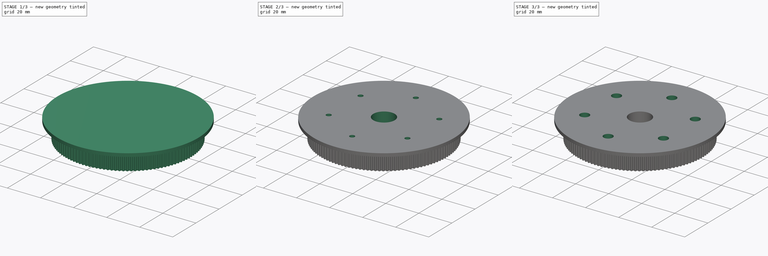
[diagram: build sequence overview — one tinted view per stage of 3, left to right]
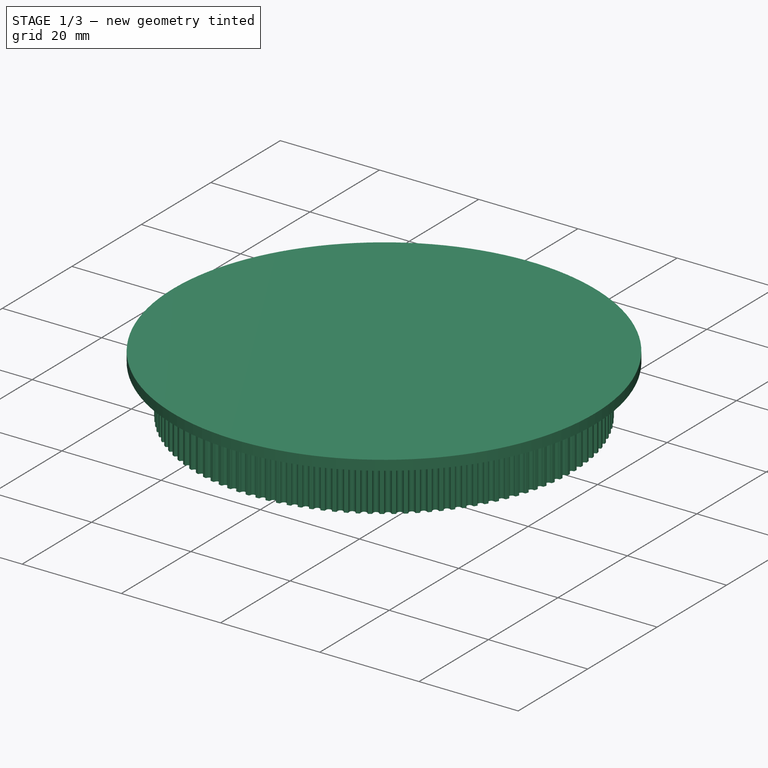
[diagram: stage 1 of 3 — iso view after this stage's code; geometry added in this stage tinted green]
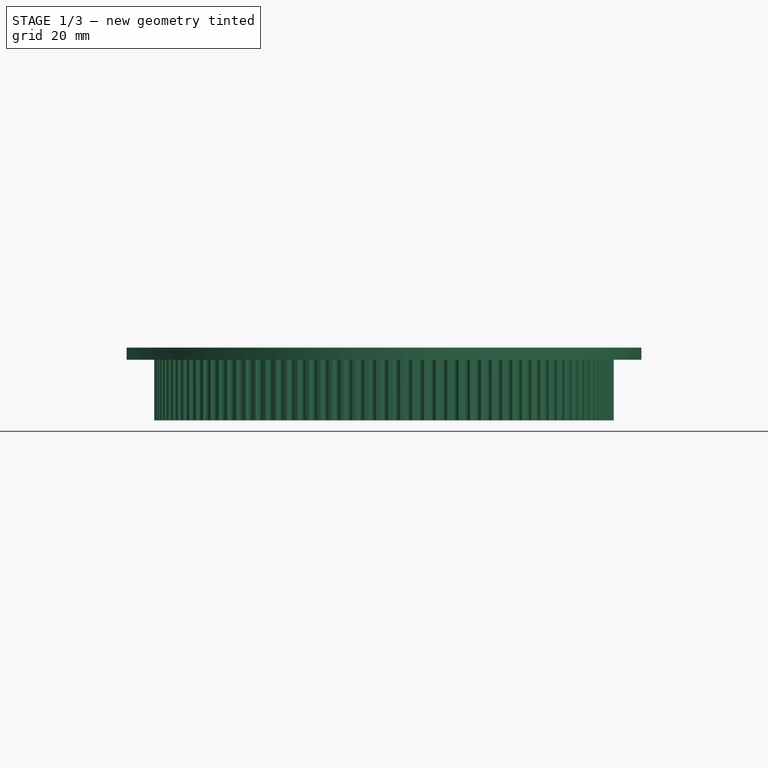
[diagram: stage 1 of 3 — front view after this stage's code; geometry added in this stage tinted green]
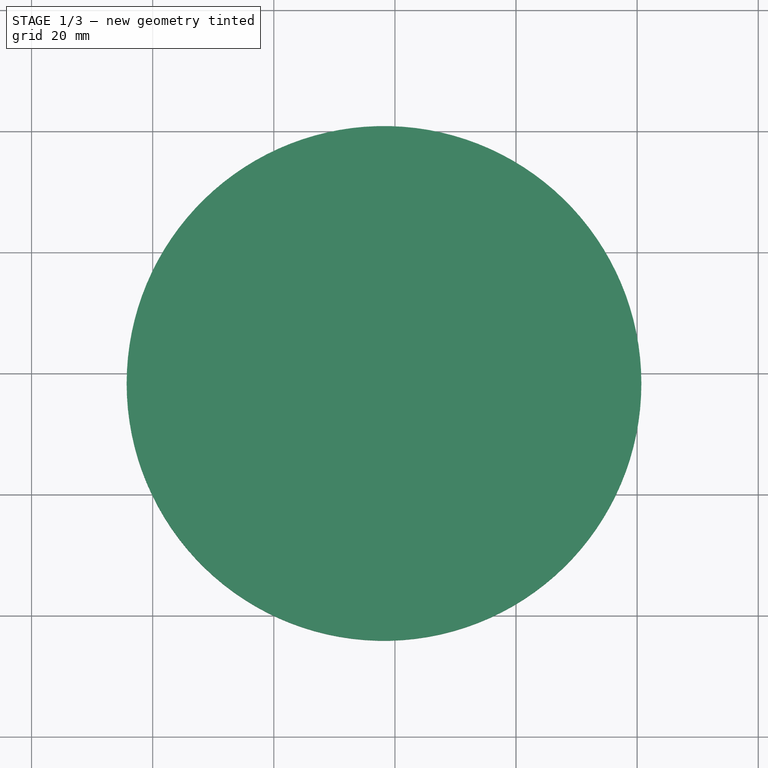
[diagram: stage 1 of 3 — top view after this stage's code; geometry added in this stage tinted green]
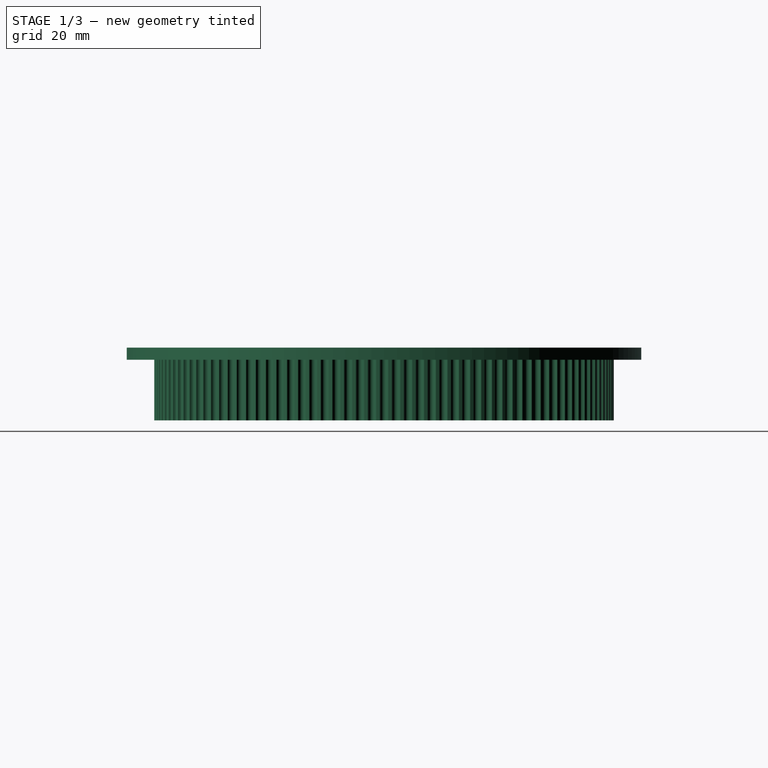
[diagram: stage 1 of 3 — right view after this stage's code; geometry added in this stage tinted green]
FCSTD DOCUMENT  (FreeCAD 0.20R29410 (Git))
Label: #4_BasePulley120T
License: All rights reserved
LicenseURL: http://en.wikipedia.org/wiki/All_rights_reserved
objects: Sketcher::SketchObject×5, PartDesign::Pocket×3, PartDesign::Pad×2, PartDesign::PolarPattern×2, PartDesign::Body×1
note: 18 computed .brp shape members not serialized (recipe doc carries the construction recipe); baked Part::Feature solids carry a one-line shape summary decoded from their .brp

FEATURE [Sketcher::SketchObject] Sketch
  FullyConstrained = false
  sketch-geometry (841):
    g0: Circle CenterX=38.1972 CenterY=38.1972 CenterZ=0 NormalX=0 NormalY=0 NormalZ=-1 AngleXU=0 Radius=2.5
    g1: ArcOfCircle CenterX=38.2055 CenterY=38.197 CenterZ=0 NormalX=0 NormalY=0 NormalZ=1 AngleXU=0 Radius=37.9432 StartAngle=6.25007 EndAngle=6.26394
    g2: ArcOfCircle CenterX=75.9916 CenterY=37.4668 CenterZ=0 NormalX=0 NormalY=0 NormalZ=1 AngleXU=0 Radius=0.15 StartAngle=0 EndAngle=1.44109
    g3: ArcOfCircle CenterX=76.0999 CenterY=38.6116 CenterZ=0 NormalX=0 NormalY=0 NormalZ=1 AngleXU=0 Radius=1 StartAngle=4.28693 EndAngle=4.6234
    g4: ArcOfCircle CenterX=75.9354 CenterY=38.1972 CenterZ=0 NormalX=0 NormalY=0 NormalZ=1 AngleXU=0 Radius=0.555 StartAngle=3.14159 EndAngle=4.24874
    g5: ArcOfCircle CenterX=75.9354 CenterY=38.1972 CenterZ=0 NormalX=0 NormalY=0 NormalZ=1 AngleXU=0 Radius=0.555 StartAngle=2.03444 EndAngle=3.14159
    g6: ArcOfCircle CenterX=76.0999 CenterY=37.7827 CenterZ=0 NormalX=0 NormalY=0 NormalZ=1 AngleXU=0 Radius=1 StartAngle=1.65979 EndAngle=1.99625
    g7: ArcOfCircle CenterX=75.9916 CenterY=38.9275 CenterZ=0 NormalX=0 NormalY=0 NormalZ=1 AngleXU=0 Radius=0.15 StartAngle=4.84209 EndAngle=6.28319
    g8: ArcOfCircle CenterX=38.2055 CenterY=38.1974 CenterZ=0 NormalX=0 NormalY=0 NormalZ=1 AngleXU=0 Radius=37.9432 StartAngle=0.0192437 EndAngle=0.0331161
    g9: ArcOfCircle CenterX=75.9781 CenterY=39.4459 CenterZ=0 NormalX=0 NormalY=0 NormalZ=1 AngleXU=0 Radius=0.15 StartAngle=0.0523599 EndAngle=1.49345
    g10: ArcOfCircle CenterX=76.0263 CenterY=40.5947 CenterZ=0 NormalX=0 NormalY=0 NormalZ=1 AngleXU=0 Radius=1 StartAngle=4.33929 EndAngle=4.67576
    g11: ArcOfCircle CenterX=75.8837 CenterY=40.1723 CenterZ=0 NormalX=0 NormalY=0 NormalZ=1 AngleXU=0 Radius=0.555 StartAngle=3.19395 EndAngle=4.3011
    g12: ArcOfCircle CenterX=75.8837 CenterY=40.1723 CenterZ=0 NormalX=0 NormalY=0 NormalZ=1 AngleXU=0 Radius=0.555 StartAngle=2.0868 EndAngle=3.19395
    g13: ArcOfCircle CenterX=76.0697 CenterY=39.767 CenterZ=0 NormalX=0 NormalY=0 NormalZ=1 AngleXU=0 Radius=1 StartAngle=1.71215 EndAngle=2.04861
    g14: ArcOfCircle CenterX=75.9016 CenterY=40.9045 CenterZ=0 NormalX=0 NormalY=0 NormalZ=1 AngleXU=0 Radius=0.15 StartAngle=4.89445 EndAngle=6.33555
    g15: ArcOfCircle CenterX=38.2054 CenterY=38.1978 CenterZ=0 NormalX=0 NormalY=0 NormalZ=1 AngleXU=0 Radius=37.9432 StartAngle=0.0716036 EndAngle=0.085476
    g16: ArcOfCircle CenterX=75.8609 CenterY=41.4214 CenterZ=0 NormalX=0 NormalY=0 NormalZ=1 AngleXU=0 Radius=0.15 StartAngle=0.10472 EndAngle=1.54581
    g17: ArcOfCircle CenterX=75.849 CenterY=42.5713 CenterZ=0 NormalX=0 NormalY=0 NormalZ=1 AngleXU=0 Radius=1 StartAngle=4.39165 EndAngle=4.72812
    g18: ArcOfCircle CenterX=75.7286 CenterY=42.1419 CenterZ=0 NormalX=0 NormalY=0 NormalZ=1 AngleXU=0 Radius=0.555 StartAngle=3.24631 EndAngle=4.35346
    g19: ArcOfCircle CenterX=75.7286 CenterY=42.1419 CenterZ=0 NormalX=0 NormalY=0 NormalZ=1 AngleXU=0 Radius=0.555 StartAngle=2.13916 EndAngle=3.24631
    g20: ArcOfCircle CenterX=75.9356 CenterY=41.7469 CenterZ=0 NormalX=0 NormalY=0 NormalZ=1 AngleXU=0 Radius=1 StartAngle=1.76451 EndAngle=2.10097
    g21: ArcOfCircle CenterX=75.7082 CenterY=42.8741 CenterZ=0 NormalX=0 NormalY=0 NormalZ=1 AngleXU=0 Radius=0.15 StartAngle=4.94681 EndAngle=6.38791
    g22: ArcOfCircle CenterX=38.2054 CenterY=38.1983 CenterZ=0 NormalX=0 NormalY=0 NormalZ=1 AngleXU=0 Radius=37.9432 StartAngle=0.123963 EndAngle=0.137836
    g23: ArcOfCircle CenterX=75.6406 CenterY=43.3882 CenterZ=0 NormalX=0 NormalY=0 NormalZ=1 AngleXU=0 Radius=0.15 StartAngle=0.15708 EndAngle=1.59817
    g24: ArcOfCircle CenterX=75.5684 CenterY=44.5358 CenterZ=0 NormalX=0 NormalY=0 NormalZ=1 AngleXU=0 Radius=1 StartAngle=4.44401 EndAngle=4.78048
    g25: ArcOfCircle CenterX=75.4708 CenterY=44.1007 CenterZ=0 NormalX=0 NormalY=0 NormalZ=1 AngleXU=0 Radius=0.555 StartAngle=3.29867 EndAngle=4.40582
    g26: ArcOfCircle CenterX=75.4708 CenterY=44.1007 CenterZ=0 NormalX=0 NormalY=0 NormalZ=1 AngleXU=0 Radius=0.555 StartAngle=2.19152 EndAngle=3.29867
    g27: ArcOfCircle CenterX=75.6981 CenterY=43.7171 CenterZ=0 NormalX=0 NormalY=0 NormalZ=1 AngleXU=0 Radius=1 StartAngle=1.81687 EndAngle=2.15333
    g28: ArcOfCircle CenterX=75.4121 CenterY=44.8309 CenterZ=0 NormalX=0 NormalY=0 NormalZ=1 AngleXU=0 Radius=0.15 StartAngle=4.99917 EndAngle=6.44026
    g29: ArcOfCircle CenterX=38.2053 CenterY=38.1987 CenterZ=0 NormalX=0 NormalY=0 NormalZ=1 AngleXU=0 Radius=37.9432 StartAngle=0.176323 EndAngle=0.190196
    g30: ArcOfCircle CenterX=75.3176 CenterY=45.3407 CenterZ=0 NormalX=0 NormalY=0 NormalZ=1 AngleXU=0 Radius=0.15 StartAngle=0.20944 EndAngle=1.65053
    g31: ArcOfCircle CenterX=75.1855 CenterY=46.483 CenterZ=0 NormalX=0 NormalY=0 NormalZ=1 AngleXU=0 Radius=1 StartAngle=4.49637 EndAngle=4.83284
    g32: ArcOfCircle CenterX=75.1107 CenterY=46.0434 CenterZ=0 NormalX=0 NormalY=0 NormalZ=1 AngleXU=0 Radius=0.555 StartAngle=3.35103 EndAngle=4.45818
    g33: ArcOfCircle CenterX=75.1107 CenterY=46.0434 CenterZ=0 NormalX=0 NormalY=0 NormalZ=1 AngleXU=0 Radius=0.555 StartAngle=2.24388 EndAngle=3.35103
    g34: ArcOfCircle CenterX=75.3578 CenterY=45.6722 CenterZ=0 NormalX=0 NormalY=0 NormalZ=1 AngleXU=0 Radius=1 StartAngle=1.86923 EndAngle=2.20569
    g35: ArcOfCircle CenterX=75.0139 CenterY=46.7695 CenterZ=0 NormalX=0 NormalY=0 NormalZ=1 AngleXU=0 Radius=0.15 StartAngle=5.05153 EndAngle=6.49262
    g36: ArcOfCircle CenterX=38.2052 CenterY=38.1991 CenterZ=0 NormalX=0 NormalY=0 NormalZ=1 AngleXU=0 Radius=37.9432 StartAngle=0.228683 EndAngle=0.242556
    g37: ArcOfCircle CenterX=74.8928 CenterY=47.2737 CenterZ=0 NormalX=0 NormalY=0 NormalZ=1 AngleXU=0 Radius=0.15 StartAngle=0.261799 EndAngle=1.70289
    g38: ArcOfCircle CenterX=74.7011 CenterY=48.4075 CenterZ=0 NormalX=0 NormalY=0 NormalZ=1 AngleXU=0 Radius=1 StartAngle=4.54873 EndAngle=4.8852
    g39: ArcOfCircle CenterX=74.6495 CenterY=47.9645 CenterZ=0 NormalX=0 NormalY=0 NormalZ=1 AngleXU=0 Radius=0.555 StartAngle=3.40339 EndAngle=4.51054
    g40: ArcOfCircle CenterX=74.6495 CenterY=47.9645 CenterZ=0 NormalX=0 NormalY=0 NormalZ=1 AngleXU=0 Radius=0.555 StartAngle=2.29624 EndAngle=3.40339
    g41: ArcOfCircle CenterX=74.9157 CenterY=47.6068 CenterZ=0 NormalX=0 NormalY=0 NormalZ=1 AngleXU=0 Radius=1 StartAngle=1.92159 EndAngle=2.25805
    g42: ArcOfCircle CenterX=74.5148 CenterY=48.6846 CenterZ=0 NormalX=0 NormalY=0 NormalZ=1 AngleXU=0 Radius=0.15 StartAngle=5.10389 EndAngle=6.54498
    g43: ArcOfCircle CenterX=38.2051 CenterY=38.1995 CenterZ=0 NormalX=0 NormalY=0 NormalZ=1 AngleXU=0 Radius=37.9432 StartAngle=0.281043 EndAngle=0.294916
    g44: ArcOfCircle CenterX=74.3675 CenterY=49.1817 CenterZ=0 NormalX=0 NormalY=0 NormalZ=1 AngleXU=0 Radius=0.15 StartAngle=0.314159 EndAngle=1.75525
    g45: ArcOfCircle CenterX=74.1167 CenterY=50.3039 CenterZ=0 NormalX=0 NormalY=0 NormalZ=1 AngleXU=0 Radius=1 StartAngle=4.60109 EndAngle=4.93756
    g46: ArcOfCircle CenterX=74.0883 CenterY=49.8589 CenterZ=0 NormalX=0 NormalY=0 NormalZ=1 AngleXU=0 Radius=0.555 StartAngle=3.45575 EndAngle=4.5629
    g47: ArcOfCircle CenterX=74.0883 CenterY=49.8589 CenterZ=0 NormalX=0 NormalY=0 NormalZ=1 AngleXU=0 Radius=0.555 StartAngle=2.3486 EndAngle=3.45575
    g48: ArcOfCircle CenterX=74.3729 CenterY=49.5156 CenterZ=0 NormalX=0 NormalY=0 NormalZ=1 AngleXU=0 Radius=1 StartAngle=1.97395 EndAngle=2.31041
    g49: ArcOfCircle CenterX=73.9162 CenterY=50.5709 CenterZ=0 NormalX=0 NormalY=0 NormalZ=1 AngleXU=0 Radius=0.15 StartAngle=5.15625 EndAngle=6.59734
    g50: ArcOfCircle CenterX=38.205 CenterY=38.2 CenterZ=0 NormalX=0 NormalY=0 NormalZ=1 AngleXU=0 Radius=37.9432 StartAngle=0.333403 EndAngle=0.347275
    g51: ArcOfCircle CenterX=73.7431 CenterY=51.0597 CenterZ=0 NormalX=0 NormalY=0 NormalZ=1 AngleXU=0 Radius=0.15 StartAngle=0.366519 EndAngle=1.80761
    g52: ArcOfCircle CenterX=73.4339 CenterY=52.1672 CenterZ=0 NormalX=0 NormalY=0 NormalZ=1 AngleXU=0 Radius=1 StartAngle=4.65345 EndAngle=4.98992
    g53: ArcOfCircle CenterX=73.4288 CenterY=51.7213 CenterZ=0 NormalX=0 NormalY=0 NormalZ=1 AngleXU=0 Radius=0.555 StartAngle=3.50811 EndAngle=4.61526
    g54: ArcOfCircle CenterX=73.4288 CenterY=51.7213 CenterZ=0 NormalX=0 NormalY=0 NormalZ=1 AngleXU=0 Radius=0.555 StartAngle=2.40096 EndAngle=3.50811
    g55: ArcOfCircle CenterX=73.7309 CenterY=51.3934 CenterZ=0 NormalX=0 NormalY=0 NormalZ=1 AngleXU=0 Radius=1 StartAngle=2.02631 EndAngle=2.36277
    g56: ArcOfCircle CenterX=73.2196 CenterY=52.4233 CenterZ=0 NormalX=0 NormalY=0 NormalZ=1 AngleXU=0 Radius=0.15 StartAngle=5.20861 EndAngle=6.6497
    g57: ArcOfCircle CenterX=38.2048 CenterY=38.2004 CenterZ=0 NormalX=0 NormalY=0 NormalZ=1 AngleXU=0 Radius=37.9432 StartAngle=0.385763 EndAngle=0.399635
    g58: ArcOfCircle CenterX=73.0212 CenterY=52.9024 CenterZ=0 NormalX=0 NormalY=0 NormalZ=1 AngleXU=0 Radius=0.15 StartAngle=0.418879 EndAngle=1.85997
    g59: ArcOfCircle CenterX=72.6545 CenterY=53.9922 CenterZ=0 NormalX=0 NormalY=0 NormalZ=1 AngleXU=0 Radius=1 StartAngle=4.70581 EndAngle=5.04228
    g60: ArcOfCircle CenterX=72.6727 CenterY=53.5467 CenterZ=0 NormalX=0 NormalY=0 NormalZ=1 AngleXU=0 Radius=0.555 StartAngle=3.56047 EndAngle=4.66762
    g61: ArcOfCircle CenterX=72.6727 CenterY=53.5467 CenterZ=0 NormalX=0 NormalY=0 NormalZ=1 AngleXU=0 Radius=0.555 StartAngle=2.45332 EndAngle=3.56047
    g62: ArcOfCircle CenterX=72.9916 CenterY=53.235 CenterZ=0 NormalX=0 NormalY=0 NormalZ=1 AngleXU=0 Radius=1 StartAngle=2.07867 EndAngle=2.41513
    g63: ArcOfCircle CenterX=72.4271 CenterY=54.2368 CenterZ=0 NormalX=0 NormalY=0 NormalZ=1 AngleXU=0 Radius=0.15 StartAngle=5.26097 EndAngle=6.70206
    g64: ArcOfCircle CenterX=38.2047 CenterY=38.2008 CenterZ=0 NormalX=0 NormalY=0 NormalZ=1 AngleXU=0 Radius=37.9432 StartAngle=0.438123 EndAngle=0.451995
    g65: ArcOfCircle CenterX=72.2039 CenterY=54.7048 CenterZ=0 NormalX=0 NormalY=0 NormalZ=1 AngleXU=0 Radius=0.15 StartAngle=0.471239 EndAngle=1.91233
    g66: ArcOfCircle CenterX=71.7806 CenterY=55.7739 CenterZ=0 NormalX=0 NormalY=0 NormalZ=1 AngleXU=0 Radius=1 StartAngle=4.75817 EndAngle=5.09464
    g67: ArcOfCircle CenterX=71.8222 CenterY=55.33 CenterZ=0 NormalX=0 NormalY=0 NormalZ=1 AngleXU=0 Radius=0.555 StartAngle=3.61283 EndAngle=4.71998
    g68: ArcOfCircle CenterX=71.8222 CenterY=55.33 CenterZ=0 NormalX=0 NormalY=0 NormalZ=1 AngleXU=0 Radius=0.555 StartAngle=2.50568 EndAngle=3.61283
    g69: ArcOfCircle CenterX=72.1569 CenterY=55.0354 CenterZ=0 NormalX=0 NormalY=0 NormalZ=1 AngleXU=0 Radius=1 StartAngle=2.13103 EndAngle=2.46749
    g70: ArcOfCircle CenterX=71.5407 CenterY=56.0062 CenterZ=0 NormalX=0 NormalY=0 NormalZ=1 AngleXU=0 Radius=0.15 StartAngle=5.31333 EndAngle=6.75442
    g71: ArcOfCircle CenterX=38.2045 CenterY=38.2011 CenterZ=0 NormalX=0 NormalY=0 NormalZ=1 AngleXU=0 Radius=37.9432 StartAngle=0.490483 EndAngle=0.504355
    g72: ArcOfCircle CenterX=71.2933 CenterY=56.4619 CenterZ=0 NormalX=0 NormalY=0 NormalZ=1 AngleXU=0 Radius=0.15 StartAngle=0.523599 EndAngle=1.96469
    g73: ArcOfCircle CenterX=70.8147 CenterY=57.5075 CenterZ=0 NormalX=0 NormalY=0 NormalZ=1 AngleXU=0 Radius=1 StartAngle=4.81053 EndAngle=5.147
    g74: ArcOfCircle CenterX=70.8794 CenterY=57.0663 CenterZ=0 NormalX=0 NormalY=0 NormalZ=1 AngleXU=0 Radius=0.555 StartAngle=3.66519 EndAngle=4.77234
    g75: ArcOfCircle CenterX=70.8794 CenterY=57.0663 CenterZ=0 NormalX=0 NormalY=0 NormalZ=1 AngleXU=0 Radius=0.555 StartAngle=2.55804 EndAngle=3.66519
    g76: ArcOfCircle CenterX=71.2291 CenterY=56.7896 CenterZ=0 NormalX=0 NormalY=0 NormalZ=1 AngleXU=0 Radius=1 StartAngle=2.18339 EndAngle=2.51985
    g77: ArcOfCircle CenterX=70.563 CenterY=57.7269 CenterZ=0 NormalX=0 NormalY=0 NormalZ=1 AngleXU=0 Radius=0.15 StartAngle=5.36569 EndAngle=6.80678
    g78: ArcOfCircle CenterX=38.2043 CenterY=38.2015 CenterZ=0 NormalX=0 NormalY=0 NormalZ=1 AngleXU=0 Radius=37.9432 StartAngle=0.542843 EndAngle=0.556715
    g79: ArcOfCircle CenterX=70.292 CenterY=58.169 CenterZ=0 NormalX=0 NormalY=0 NormalZ=1 AngleXU=0 Radius=0.15 StartAngle=0.575959 EndAngle=2.01705
    g80: ArcOfCircle CenterX=69.7594 CenterY=59.1881 CenterZ=0 NormalX=0 NormalY=0 NormalZ=1 AngleXU=0 Radius=1 StartAngle=4.86289 EndAngle=5.19936
    g81: ArcOfCircle CenterX=69.8471 CenterY=58.7509 CenterZ=0 NormalX=0 NormalY=0 NormalZ=1 AngleXU=0 Radius=0.555 StartAngle=3.71755 EndAngle=4.8247
    g82: ArcOfCircle CenterX=69.8471 CenterY=58.7509 CenterZ=0 NormalX=0 NormalY=0 NormalZ=1 AngleXU=0 Radius=0.555 StartAngle=2.6104 EndAngle=3.71755
    g83: ArcOfCircle CenterX=70.2108 CenterY=58.4929 CenterZ=0 NormalX=0 NormalY=0 NormalZ=1 AngleXU=0 Radius=1 StartAngle=2.23575 EndAngle=2.57221
    g84: ArcOfCircle CenterX=69.4965 CenterY=59.394 CenterZ=0 NormalX=0 NormalY=0 NormalZ=1 AngleXU=0 Radius=0.15 StartAngle=5.41805 EndAngle=6.85914
    g85: ArcOfCircle CenterX=38.204 CenterY=38.2019 CenterZ=0 NormalX=0 NormalY=0 NormalZ=1 AngleXU=0 Radius=37.9432 StartAngle=0.595202 EndAngle=0.609075
    g86: ArcOfCircle CenterX=69.2028 CenterY=59.8213 CenterZ=0 NormalX=0 NormalY=0 NormalZ=1 AngleXU=0 Radius=0.15 StartAngle=0.628319 EndAngle=2.06941
    g87: ArcOfCircle CenterX=68.6175 CenterY=60.8111 CenterZ=0 NormalX=0 NormalY=0 NormalZ=1 AngleXU=0 Radius=1 StartAngle=4.91525 EndAngle=5.25172
    g88: ArcOfCircle CenterX=68.728 CenterY=60.3791 CenterZ=0 NormalX=0 NormalY=0 NormalZ=1 AngleXU=0 Radius=0.555 StartAngle=3.76991 EndAngle=4.87706
    g89: ArcOfCircle CenterX=68.728 CenterY=60.3791 CenterZ=0 NormalX=0 NormalY=0 NormalZ=1 AngleXU=0 Radius=0.555 StartAngle=2.66276 EndAngle=3.76991
    g90: ArcOfCircle CenterX=69.1047 CenterY=60.1406 CenterZ=0 NormalX=0 NormalY=0 NormalZ=1 AngleXU=0 Radius=1 StartAngle=2.28811 EndAngle=2.62457
    g91: ArcOfCircle CenterX=68.3443 CenterY=61.0031 CenterZ=0 NormalX=0 NormalY=0 NormalZ=1 AngleXU=0 Radius=0.15 StartAngle=5.47041 EndAngle=6.9115
    g92: ArcOfCircle CenterX=38.2038 CenterY=38.2022 CenterZ=0 NormalX=0 NormalY=0 NormalZ=1 AngleXU=0 Radius=37.9432 StartAngle=0.647562 EndAngle=0.661435
    g93: ArcOfCircle CenterX=68.0286 CenterY=61.4144 CenterZ=0 NormalX=0 NormalY=0 NormalZ=1 AngleXU=0 Radius=0.15 StartAngle=0.680678 EndAngle=2.12177
    g94: ArcOfCircle CenterX=67.3923 CenterY=62.3722 CenterZ=0 NormalX=0 NormalY=0 NormalZ=1 AngleXU=0 Radius=1 StartAngle=4.96761 EndAngle=5.30408
    g95: ArcOfCircle CenterX=67.5253 CenterY=61.9466 CenterZ=0 NormalX=0 NormalY=0 NormalZ=1 AngleXU=0 Radius=0.555 StartAngle=3.82227 EndAngle=4.92942
    g96: ArcOfCircle CenterX=67.5253 CenterY=61.9466 CenterZ=0 NormalX=0 NormalY=0 NormalZ=1 AngleXU=0 Radius=0.555 StartAngle=2.71512 EndAngle=3.82227
    g97: ArcOfCircle CenterX=67.914 CenterY=61.7281 CenterZ=0 NormalX=0 NormalY=0 NormalZ=1 AngleXU=0 Radius=1 StartAngle=2.34047 EndAngle=2.67693
    g98: ArcOfCircle CenterX=67.1094 CenterY=62.5496 CenterZ=0 NormalX=0 NormalY=0 NormalZ=1 AngleXU=0 Radius=0.15 StartAngle=5.52277 EndAngle=6.96386
    g99: ArcOfCircle CenterX=38.2035 CenterY=38.2026 CenterZ=0 NormalX=0 NormalY=0 NormalZ=1 AngleXU=0 Radius=37.9432 StartAngle=0.699922 EndAngle=0.713795
    g100: ArcOfCircle CenterX=66.7726 CenterY=62.9439 CenterZ=0 NormalX=0 NormalY=0 NormalZ=1 AngleXU=0 Radius=0.15 StartAngle=0.733038 EndAngle=2.17413
    g101: ArcOfCircle CenterX=66.0871 CenterY=63.867 CenterZ=0 NormalX=0 NormalY=0 NormalZ=1 AngleXU=0 Radius=1 StartAngle=5.01997 EndAngle=5.35644
    g102: ArcOfCircle CenterX=66.2421 CenterY=63.449 CenterZ=0 NormalX=0 NormalY=0 NormalZ=1 AngleXU=0 Radius=0.555 StartAngle=3.87463 EndAngle=4.98178
    g103: ArcOfCircle CenterX=66.2421 CenterY=63.449 CenterZ=0 NormalX=0 NormalY=0 NormalZ=1 AngleXU=0 Radius=0.555 StartAngle=2.76748 EndAngle=3.87463
    g104: ArcOfCircle CenterX=66.6417 CenterY=63.2511 CenterZ=0 NormalX=0 NormalY=0 NormalZ=1 AngleXU=0 Radius=1 StartAngle=2.39283 EndAngle=2.72929
    g105: ArcOfCircle CenterX=65.7952 CenterY=64.0294 CenterZ=0 NormalX=0 NormalY=0 NormalZ=1 AngleXU=0 Radius=0.15 StartAngle=5.57513 EndAngle=7.01622
    g106: ArcOfCircle CenterX=38.2032 CenterY=38.2029 CenterZ=0 NormalX=0 NormalY=0 NormalZ=1 AngleXU=0 Radius=37.9432 StartAngle=0.752282 EndAngle=0.766154
    g107: ArcOfCircle CenterX=65.4383 CenterY=64.4055 CenterZ=0 NormalX=0 NormalY=0 NormalZ=1 AngleXU=0 Radius=0.15 StartAngle=0.785398 EndAngle=2.22649
    g108: ArcOfCircle CenterX=64.7054 CenterY=65.2915 CenterZ=0 NormalX=0 NormalY=0 NormalZ=1 AngleXU=0 Radius=1 StartAngle=5.07233 EndAngle=5.4088
    g109: ArcOfCircle CenterX=64.8821 CenterY=64.8821 CenterZ=0 NormalX=0 NormalY=0 NormalZ=1 AngleXU=0 Radius=0.555 StartAngle=3.92699 EndAngle=5.03414
    g110: ArcOfCircle CenterX=64.8821 CenterY=64.8821 CenterZ=0 NormalX=0 NormalY=0 NormalZ=1 AngleXU=0 Radius=0.555 StartAngle=2.81984 EndAngle=3.92699
    g111: ArcOfCircle CenterX=65.2915 CenterY=64.7054 CenterZ=0 NormalX=0 NormalY=0 NormalZ=1 AngleXU=0 Radius=1 StartAngle=2.44519 EndAngle=2.78165
    g112: ArcOfCircle CenterX=64.4055 CenterY=65.4383 CenterZ=0 NormalX=0 NormalY=0 NormalZ=1 AngleXU=0 Radius=0.15 StartAngle=5.62749 EndAngle=7.06858
    g113: ArcOfCircle CenterX=38.2029 CenterY=38.2032 CenterZ=0 NormalX=0 NormalY=0 NormalZ=1 AngleXU=0 Radius=37.9432 StartAngle=0.804642 EndAngle=0.818514
    g114: ArcOfCircle CenterX=64.0294 CenterY=65.7952 CenterZ=0 NormalX=0 NormalY=0 NormalZ=1 AngleXU=0 Radius=0.15 StartAngle=0.837758 EndAngle=2.27885
    g115: ArcOfCircle CenterX=63.2511 CenterY=66.6417 CenterZ=0 NormalX=0 NormalY=0 NormalZ=1 AngleXU=0 Radius=1 StartAngle=5.12469 EndAngle=5.46116
    g116: ArcOfCircle CenterX=63.449 CenterY=66.2421 CenterZ=0 NormalX=0 NormalY=0 NormalZ=1 AngleXU=0 Radius=0.555 StartAngle=3.97935 EndAngle=5.0865
    g117: ArcOfCircle CenterX=63.449 CenterY=66.2421 CenterZ=0 NormalX=0 NormalY=0 NormalZ=1 AngleXU=0 Radius=0.555 StartAngle=2.8722 EndAngle=3.97935
    g118: ArcOfCircle CenterX=63.867 CenterY=66.0871 CenterZ=0 NormalX=0 NormalY=0 NormalZ=1 AngleXU=0 Radius=1 StartAngle=2.49755 EndAngle=2.83401
    g119: ArcOfCircle CenterX=62.9439 CenterY=66.7726 CenterZ=0 NormalX=0 NormalY=0 NormalZ=1 AngleXU=0 Radius=0.15 StartAngle=5.67985 EndAngle=7.12094
    g120: ArcOfCircle CenterX=38.2026 CenterY=38.2035 CenterZ=0 NormalX=0 NormalY=0 NormalZ=1 AngleXU=0 Radius=37.9432 StartAngle=0.857002 EndAngle=0.870874
    g121: ArcOfCircle CenterX=62.5496 CenterY=67.1094 CenterZ=0 NormalX=0 NormalY=0 NormalZ=1 AngleXU=0 Radius=0.15 StartAngle=0.890118 EndAngle=2.33121
    g122: ArcOfCircle CenterX=61.7281 CenterY=67.914 CenterZ=0 NormalX=0 NormalY=0 NormalZ=1 AngleXU=0 Radius=1 StartAngle=5.17705 EndAngle=5.51352
    g123: ArcOfCircle CenterX=61.9466 CenterY=67.5253 CenterZ=0 NormalX=0 NormalY=0 NormalZ=1 AngleXU=0 Radius=0.555 StartAngle=4.03171 EndAngle=5.13886
    g124: ArcOfCircle CenterX=61.9466 CenterY=67.5253 CenterZ=0 NormalX=0 NormalY=0 NormalZ=1 AngleXU=0 Radius=0.555 StartAngle=2.92456 EndAngle=4.03171
    g125: ArcOfCircle CenterX=62.3722 CenterY=67.3923 CenterZ=0 NormalX=0 NormalY=0 NormalZ=1 AngleXU=0 Radius=1 StartAngle=2.54991 EndAngle=2.88637
    g126: ArcOfCircle CenterX=61.4144 CenterY=68.0286 CenterZ=0 NormalX=0 NormalY=0 NormalZ=1 AngleXU=0 Radius=0.15 StartAngle=5.73221 EndAngle=7.1733
    g127: ArcOfCircle CenterX=38.2022 CenterY=38.2038 CenterZ=0 NormalX=0 NormalY=0 NormalZ=1 AngleXU=0 Radius=37.9432 StartAngle=0.909362 EndAngle=0.923234
    g128: ArcOfCircle CenterX=61.0031 CenterY=68.3443 CenterZ=0 NormalX=0 NormalY=0 NormalZ=1 AngleXU=0 Radius=0.15 StartAngle=0.942478 EndAngle=2.38357
    g129: ArcOfCircle CenterX=60.1406 CenterY=69.1047 CenterZ=0 NormalX=0 NormalY=0 NormalZ=1 AngleXU=0 Radius=1 StartAngle=5.22941 EndAngle=5.56588
    g130: ArcOfCircle CenterX=60.3791 CenterY=68.728 CenterZ=0 NormalX=0 NormalY=0 NormalZ=1 AngleXU=0 Radius=0.555 StartAngle=4.08407 EndAngle=5.19122
    g131: ArcOfCircle CenterX=60.3791 CenterY=68.728 CenterZ=0 NormalX=0 NormalY=0 NormalZ=1 AngleXU=0 Radius=0.555 StartAngle=2.97692 EndAngle=4.08407
    g132: ArcOfCircle CenterX=60.8111 CenterY=68.6175 CenterZ=0 NormalX=0 NormalY=0 NormalZ=1 AngleXU=0 Radius=1 StartAngle=2.60227 EndAngle=2.93873
    g133: ArcOfCircle CenterX=59.8213 CenterY=69.2028 CenterZ=0 NormalX=0 NormalY=0 NormalZ=1 AngleXU=0 Radius=0.15 StartAngle=5.78457 EndAngle=7.22566
    g134: ArcOfCircle CenterX=38.2019 CenterY=38.204 CenterZ=0 NormalX=0 NormalY=0 NormalZ=1 AngleXU=0 Radius=37.9432 StartAngle=0.961722 EndAngle=0.975594
    g135: ArcOfCircle CenterX=59.394 CenterY=69.4965 CenterZ=0 NormalX=0 NormalY=0 NormalZ=1 AngleXU=0 Radius=0.15 StartAngle=0.994838 EndAngle=2.43593
    g136: ArcOfCircle CenterX=58.4929 CenterY=70.2108 CenterZ=0 NormalX=0 NormalY=0 NormalZ=1 AngleXU=0 Radius=1 StartAngle=5.28177 EndAngle=5.61824
    g137: ArcOfCircle CenterX=58.7509 CenterY=69.8471 CenterZ=0 NormalX=0 NormalY=0 NormalZ=1 AngleXU=0 Radius=0.555 StartAngle=4.13643 EndAngle=5.24358
    g138: ArcOfCircle CenterX=58.7509 CenterY=69.8471 CenterZ=0 NormalX=0 NormalY=0 NormalZ=1 AngleXU=0 Radius=0.555 StartAngle=3.02928 EndAngle=4.13643
    g139: ArcOfCircle CenterX=59.1881 CenterY=69.7594 CenterZ=0 NormalX=0 NormalY=0 NormalZ=1 AngleXU=0 Radius=1 StartAngle=2.65463 EndAngle=2.99109
    g140: ArcOfCircle CenterX=58.169 CenterY=70.292 CenterZ=0 NormalX=0 NormalY=0 NormalZ=1 AngleXU=0 Radius=0.15 StartAngle=5.83693 EndAngle=7.27802
    g141: ArcOfCircle CenterX=38.2015 CenterY=38.2043 CenterZ=0 NormalX=0 NormalY=0 NormalZ=1 AngleXU=0 Radius=37.9432 StartAngle=1.01408 EndAngle=1.02795
    g142: ArcOfCircle CenterX=57.7269 CenterY=70.563 CenterZ=0 NormalX=0 NormalY=0 NormalZ=1 AngleXU=0 Radius=0.15 StartAngle=1.0472 EndAngle=2.48829
    g143: ArcOfCircle CenterX=56.7896 CenterY=71.2291 CenterZ=0 NormalX=0 NormalY=0 NormalZ=1 AngleXU=0 Radius=1 StartAngle=5.33413 EndAngle=5.67059
    g144: ArcOfCircle CenterX=57.0663 CenterY=70.8794 CenterZ=0 NormalX=0 NormalY=0 NormalZ=1 AngleXU=0 Radius=0.555 StartAngle=4.18879 EndAngle=5.29594
    g145: ArcOfCircle CenterX=57.0663 CenterY=70.8794 CenterZ=0 NormalX=0 NormalY=0 NormalZ=1 AngleXU=0 Radius=0.555 StartAngle=3.08164 EndAngle=4.18879
    g146: ArcOfCircle CenterX=57.5075 CenterY=70.8147 CenterZ=0 NormalX=0 NormalY=0 NormalZ=1 AngleXU=0 Radius=1 StartAngle=2.70699 EndAngle=3.04345
    g147: ArcOfCircle CenterX=56.4619 CenterY=71.2933 CenterZ=0 NormalX=0 NormalY=0 NormalZ=1 AngleXU=0 Radius=0.15 StartAngle=5.88929 EndAngle=7.33038
    g148: ArcOfCircle CenterX=38.2011 CenterY=38.2045 CenterZ=0 NormalX=0 NormalY=0 NormalZ=1 AngleXU=0 Radius=37.9432 StartAngle=1.06644 EndAngle=1.08031
    g149: ArcOfCircle CenterX=56.0062 CenterY=71.5407 CenterZ=0 NormalX=0 NormalY=0 NormalZ=1 AngleXU=0 Radius=0.15 StartAngle=1.09956 EndAngle=2.54065
    g150: ArcOfCircle CenterX=55.0354 CenterY=72.1569 CenterZ=0 NormalX=0 NormalY=0 NormalZ=1 AngleXU=0 Radius=1 StartAngle=5.38649 EndAngle=5.72295
    g151: ArcOfCircle CenterX=55.33 CenterY=71.8222 CenterZ=0 NormalX=0 NormalY=0 NormalZ=1 AngleXU=0 Radius=0.555 StartAngle=4.24115 EndAngle=5.3483
    g152: ArcOfCircle CenterX=55.33 CenterY=71.8222 CenterZ=0 NormalX=0 NormalY=0 NormalZ=1 AngleXU=0 Radius=0.555 StartAngle=3.134 EndAngle=4.24115
    g153: ArcOfCircle CenterX=55.7739 CenterY=71.7806 CenterZ=0 NormalX=0 NormalY=0 NormalZ=1 AngleXU=0 Radius=1 StartAngle=2.75935 EndAngle=3.09581
    g154: ArcOfCircle CenterX=54.7048 CenterY=72.2039 CenterZ=0 NormalX=0 NormalY=0 NormalZ=1 AngleXU=0 Radius=0.15 StartAngle=5.94165 EndAngle=7.38274
    g155: ArcOfCircle CenterX=38.2008 CenterY=38.2047 CenterZ=0 NormalX=0 NormalY=0 NormalZ=1 AngleXU=0 Radius=37.9432 StartAngle=1.1188 EndAngle=1.13267
    g156: ArcOfCircle CenterX=54.2368 CenterY=72.4271 CenterZ=0 NormalX=0 NormalY=0 NormalZ=1 AngleXU=0 Radius=0.15 StartAngle=1.15192 EndAngle=2.59301
    g157: ArcOfCircle CenterX=53.235 CenterY=72.9916 CenterZ=0 NormalX=0 NormalY=0 NormalZ=1 AngleXU=0 Radius=1 StartAngle=5.43885 EndAngle=5.77531
    g158: ArcOfCircle CenterX=53.5467 CenterY=72.6727 CenterZ=0 NormalX=0 NormalY=0 NormalZ=1 AngleXU=0 Radius=0.555 StartAngle=4.29351 EndAngle=5.40066
    g159: ArcOfCircle CenterX=53.5467 CenterY=72.6727 CenterZ=0 NormalX=0 NormalY=0 NormalZ=1 AngleXU=0 Radius=0.555 StartAngle=3.18636 EndAngle=4.29351
    g160: ArcOfCircle CenterX=53.9922 CenterY=72.6545 CenterZ=0 NormalX=0 NormalY=0 NormalZ=1 AngleXU=0 Radius=1 StartAngle=2.81171 EndAngle=3.14817
    g161: ArcOfCircle CenterX=52.9024 CenterY=73.0212 CenterZ=0 NormalX=0 NormalY=0 NormalZ=1 AngleXU=0 Radius=0.15 StartAngle=5.99401 EndAngle=7.4351
    g162: ArcOfCircle CenterX=38.2004 CenterY=38.2048 CenterZ=0 NormalX=0 NormalY=0 NormalZ=1 AngleXU=0 Radius=37.9432 StartAngle=1.17116 EndAngle=1.18503
    g163: ArcOfCircle CenterX=52.4233 CenterY=73.2196 CenterZ=0 NormalX=0 NormalY=0 NormalZ=1 AngleXU=0 Radius=0.15 StartAngle=1.20428 EndAngle=2.64537
    g164: ArcOfCircle CenterX=51.3934 CenterY=73.7309 CenterZ=0 NormalX=0 NormalY=0 NormalZ=1 AngleXU=0 Radius=1 StartAngle=5.49121 EndAngle=5.82767
    g165: ArcOfCircle CenterX=51.7213 CenterY=73.4288 CenterZ=0 NormalX=0 NormalY=0 NormalZ=1 AngleXU=0 Radius=0.555 StartAngle=4.34587 EndAngle=5.45302
    g166: ArcOfCircle CenterX=51.7213 CenterY=73.4288 CenterZ=0 NormalX=0 NormalY=0 NormalZ=1 AngleXU=0 Radius=0.555 StartAngle=3.23872 EndAngle=4.34587
    g167: ArcOfCircle CenterX=52.1672 CenterY=73.4339 CenterZ=0 NormalX=0 NormalY=0 NormalZ=1 AngleXU=0 Radius=1 StartAngle=2.86407 EndAngle=3.20053
    g168: ArcOfCircle CenterX=51.0597 CenterY=73.7431 CenterZ=0 NormalX=0 NormalY=0 NormalZ=1 AngleXU=0 Radius=0.15 StartAngle=6.04637 EndAngle=7.48746
    g169: ArcOfCircle CenterX=38.2 CenterY=38.205 CenterZ=0 NormalX=0 NormalY=0 NormalZ=1 AngleXU=0 Radius=37.9432 StartAngle=1.22352 EndAngle=1.23739
    g170: ArcOfCircle CenterX=50.5709 CenterY=73.9162 CenterZ=0 NormalX=0 NormalY=0 NormalZ=1 AngleXU=0 Radius=0.15 StartAngle=1.25664 EndAngle=2.69773
    g171: ArcOfCircle CenterX=49.5156 CenterY=74.3729 CenterZ=0 NormalX=0 NormalY=0 NormalZ=1 AngleXU=0 Radius=1 StartAngle=5.54357 EndAngle=5.88003
    g172: ArcOfCircle CenterX=49.8589 CenterY=74.0883 CenterZ=0 NormalX=0 NormalY=0 NormalZ=1 AngleXU=0 Radius=0.555 StartAngle=4.39823 EndAngle=5.50538
    g173: ArcOfCircle CenterX=49.8589 CenterY=74.0883 CenterZ=0 NormalX=0 NormalY=0 NormalZ=1 AngleXU=0 Radius=0.555 StartAngle=3.29108 EndAngle=4.39823
    g174: ArcOfCircle CenterX=50.3039 CenterY=74.1167 CenterZ=0 NormalX=0 NormalY=0 NormalZ=1 AngleXU=0 Radius=1 StartAngle=2.91643 EndAngle=3.25289
    g175: ArcOfCircle CenterX=49.1817 CenterY=74.3675 CenterZ=0 NormalX=0 NormalY=0 NormalZ=1 AngleXU=0 Radius=0.15 StartAngle=6.09873 EndAngle=7.53982
    g176: ArcOfCircle CenterX=38.1995 CenterY=38.2051 CenterZ=0 NormalX=0 NormalY=0 NormalZ=1 AngleXU=0 Radius=37.9432 StartAngle=1.27588 EndAngle=1.28975
    g177: ArcOfCircle CenterX=48.6846 CenterY=74.5148 CenterZ=0 NormalX=0 NormalY=0 NormalZ=1 AngleXU=0 Radius=0.15 StartAngle=1.309 EndAngle=2.75009
    g178: ArcOfCircle CenterX=47.6068 CenterY=74.9157 CenterZ=0 NormalX=0 NormalY=0 NormalZ=1 AngleXU=0 Radius=1 StartAngle=5.59593 EndAngle=5.93239
    g179: ArcOfCircle CenterX=47.9645 CenterY=74.6495 CenterZ=0 NormalX=0 NormalY=0 NormalZ=1 AngleXU=0 Radius=0.555 StartAngle=4.45059 EndAngle=5.55774
    g180: ArcOfCircle CenterX=47.9645 CenterY=74.6495 CenterZ=0 NormalX=0 NormalY=0 NormalZ=1 AngleXU=0 Radius=0.555 StartAngle=3.34344 EndAngle=4.45059
    g181: ArcOfCircle CenterX=48.4075 CenterY=74.7011 CenterZ=0 NormalX=0 NormalY=0 NormalZ=1 AngleXU=0 Radius=1 StartAngle=2.96878 EndAngle=3.30525
    g182: ArcOfCircle CenterX=47.2737 CenterY=74.8928 CenterZ=0 NormalX=0 NormalY=0 NormalZ=1 AngleXU=0 Radius=0.15 StartAngle=6.15109 EndAngle=7.59218
    g183: ArcOfCircle CenterX=38.1991 CenterY=38.2052 CenterZ=0 NormalX=0 NormalY=0 NormalZ=1 AngleXU=0 Radius=37.9432 StartAngle=1.32824 EndAngle=1.34211
    g184: ArcOfCircle CenterX=46.7695 CenterY=75.0139 CenterZ=0 NormalX=0 NormalY=0 NormalZ=1 AngleXU=0 Radius=0.15 StartAngle=1.36136 EndAngle=2.80245
    g185: ArcOfCircle CenterX=45.6722 CenterY=75.3578 CenterZ=0 NormalX=0 NormalY=0 NormalZ=1 AngleXU=0 Radius=1 StartAngle=5.64829 EndAngle=5.98475
    g186: ArcOfCircle CenterX=46.0434 CenterY=75.1107 CenterZ=0 NormalX=0 NormalY=0 NormalZ=1 AngleXU=0 Radius=0.555 StartAngle=4.50295 EndAngle=5.6101
    g187: ArcOfCircle CenterX=46.0434 CenterY=75.1107 CenterZ=0 NormalX=0 NormalY=0 NormalZ=1 AngleXU=0 Radius=0.555 StartAngle=3.3958 EndAngle=4.50295
    g188: ArcOfCircle CenterX=46.483 CenterY=75.1855 CenterZ=0 NormalX=0 NormalY=0 NormalZ=1 AngleXU=0 Radius=1 StartAngle=3.02114 EndAngle=3.35761
    g189: ArcOfCircle CenterX=45.3407 CenterY=75.3176 CenterZ=0 NormalX=0 NormalY=0 NormalZ=1 AngleXU=0 Radius=0.15 StartAngle=6.20345 EndAngle=7.64454
    g190: ArcOfCircle CenterX=38.1987 CenterY=38.2053 CenterZ=0 NormalX=0 NormalY=0 NormalZ=1 AngleXU=0 Radius=37.9432 StartAngle=1.3806 EndAngle=1.39447
    g191: ArcOfCircle CenterX=44.8309 CenterY=75.4121 CenterZ=0 NormalX=0 NormalY=0 NormalZ=1 AngleXU=0 Radius=0.15 StartAngle=1.41372 EndAngle=2.85481
    g192: ArcOfCircle CenterX=43.7171 CenterY=75.6981 CenterZ=0 NormalX=0 NormalY=0 NormalZ=1 AngleXU=0 Radius=1 StartAngle=5.70065 EndAngle=6.03711
    g193: ArcOfCircle CenterX=44.1007 CenterY=75.4708 CenterZ=0 NormalX=0 NormalY=0 NormalZ=1 AngleXU=0 Radius=0.555 StartAngle=4.55531 EndAngle=5.66246
    g194: ArcOfCircle CenterX=44.1007 CenterY=75.4708 CenterZ=0 NormalX=0 NormalY=0 NormalZ=1 AngleXU=0 Radius=0.555 StartAngle=3.44816 EndAngle=4.55531
    g195: ArcOfCircle CenterX=44.5358 CenterY=75.5684 CenterZ=0 NormalX=0 NormalY=0 NormalZ=1 AngleXU=0 Radius=1 StartAngle=3.0735 EndAngle=3.40997
    g196: ArcOfCircle CenterX=43.3882 CenterY=75.6406 CenterZ=0 NormalX=0 NormalY=0 NormalZ=1 AngleXU=0 Radius=0.15 StartAngle=6.25581 EndAngle=7.6969
    g197: ArcOfCircle CenterX=38.1983 CenterY=38.2054 CenterZ=0 NormalX=0 NormalY=0 NormalZ=1 AngleXU=0 Radius=37.9432 StartAngle=1.43296 EndAngle=1.44683
    g198: ArcOfCircle CenterX=42.8741 CenterY=75.7082 CenterZ=0 NormalX=0 NormalY=0 NormalZ=1 AngleXU=0 Radius=0.15 StartAngle=1.46608 EndAngle=2.90717
    g199: ArcOfCircle CenterX=41.7469 CenterY=75.9356 CenterZ=0 NormalX=0 NormalY=0 NormalZ=1 AngleXU=0 Radius=1 StartAngle=5.75301 EndAngle=6.08947
    g200: ArcOfCircle CenterX=42.1419 CenterY=75.7286 CenterZ=0 NormalX=0 NormalY=0 NormalZ=1 AngleXU=0 Radius=0.555 StartAngle=4.60767 EndAngle=5.71482
    g201: ArcOfCircle CenterX=42.1419 CenterY=75.7286 CenterZ=0 NormalX=0 NormalY=0 NormalZ=1 AngleXU=0 Radius=0.555 StartAngle=3.50052 EndAngle=4.60767
    g202: ArcOfCircle CenterX=42.5713 CenterY=75.849 CenterZ=0 NormalX=0 NormalY=0 NormalZ=1 AngleXU=0 Radius=1 StartAngle=3.12586 EndAngle=3.46233
    g203: ArcOfCircle CenterX=41.4214 CenterY=75.8609 CenterZ=0 NormalX=0 NormalY=0 NormalZ=1 AngleXU=0 Radius=0.15 StartAngle=0.0249828 EndAngle=1.46608
    g204: ArcOfCircle CenterX=38.1978 CenterY=38.2054 CenterZ=0 NormalX=0 NormalY=0 NormalZ=1 AngleXU=0 Radius=37.9432 StartAngle=1.48532 EndAngle=1.49919
    g205: ArcOfCircle CenterX=40.9045 CenterY=75.9016 CenterZ=0 NormalX=0 NormalY=0 NormalZ=1 AngleXU=0 Radius=0.15 StartAngle=1.51844 EndAngle=2.95953
    g206: ArcOfCircle CenterX=39.767 CenterY=76.0697 CenterZ=0 NormalX=0 NormalY=0 NormalZ=1 AngleXU=0 Radius=1 StartAngle=5.80537 EndAngle=6.14183
    g207: ArcOfCircle CenterX=40.1723 CenterY=75.8837 CenterZ=0 NormalX=0 NormalY=0 NormalZ=1 AngleXU=0 Radius=0.555 StartAngle=4.66003 EndAngle=5.76718
    g208: ArcOfCircle CenterX=40.1723 CenterY=75.8837 CenterZ=0 NormalX=0 NormalY=0 NormalZ=1 AngleXU=0 Radius=0.555 StartAngle=3.55288 EndAngle=4.66003
    g209: ArcOfCircle CenterX=40.5947 CenterY=76.0263 CenterZ=0 NormalX=0 NormalY=0 NormalZ=1 AngleXU=0 Radius=1 StartAngle=3.17822 EndAngle=3.51469
    g210: ArcOfCircle CenterX=39.4459 CenterY=75.9781 CenterZ=0 NormalX=0 NormalY=0 NormalZ=1 AngleXU=0 Radius=0.15 StartAngle=0.0773427 EndAngle=1.51844
    g211: ArcOfCircle CenterX=38.1974 CenterY=38.2055 CenterZ=0 NormalX=0 NormalY=0 NormalZ=1 AngleXU=0 Radius=37.9432 StartAngle=1.53768 EndAngle=1.55155
    g212: ArcOfCircle CenterX=38.9275 CenterY=75.9916 CenterZ=0 NormalX=0 NormalY=0 NormalZ=1 AngleXU=0 Radius=0.15 StartAngle=1.5708 EndAngle=3.01189
    g213: ArcOfCircle CenterX=37.7827 CenterY=76.0999 CenterZ=0 NormalX=0 NormalY=0 NormalZ=1 AngleXU=0 Radius=1 StartAngle=5.85773 EndAngle=6.19419
    g214: ArcOfCircle CenterX=38.1972 CenterY=75.9354 CenterZ=0 NormalX=0 NormalY=0 NormalZ=1 AngleXU=0 Radius=0.555 StartAngle=4.71239 EndAngle=5.81954
    g215: ArcOfCircle CenterX=38.1972 CenterY=75.9354 CenterZ=0 NormalX=0 NormalY=0 NormalZ=1 AngleXU=0 Radius=0.555 StartAngle=3.60524 EndAngle=4.71239
    g216: ArcOfCircle CenterX=38.6116 CenterY=76.0999 CenterZ=0 NormalX=0 NormalY=0 NormalZ=1 AngleXU=0 Radius=1 StartAngle=3.23058 EndAngle=3.56705
    g217: ArcOfCircle CenterX=37.4668 CenterY=75.9916 CenterZ=0 NormalX=0 NormalY=0 NormalZ=1 AngleXU=0 Radius=0.15 StartAngle=0.129703 EndAngle=1.5708
    g218: ArcOfCircle CenterX=38.197 CenterY=38.2055 CenterZ=0 NormalX=0 NormalY=0 NormalZ=1 AngleXU=0 Radius=37.9432 StartAngle=1.59004 EndAngle=1.60391
    g219: ArcOfCircle CenterX=36.9485 CenterY=75.9781 CenterZ=0 NormalX=0 NormalY=0 NormalZ=1 AngleXU=0 Radius=0.15 StartAngle=1.62316 EndAngle=3.06425
    g220: ArcOfCircle CenterX=35.7996 CenterY=76.0263 CenterZ=0 NormalX=0 NormalY=0 NormalZ=1 AngleXU=0 Radius=1 StartAngle=5.91009 EndAngle=6.24655
    g221: ArcOfCircle CenterX=36.2221 CenterY=75.8837 CenterZ=0 NormalX=0 NormalY=0 NormalZ=1 AngleXU=0 Radius=0.555 StartAngle=4.76475 EndAngle=5.8719
    g222: ArcOfCircle CenterX=36.2221 CenterY=75.8837 CenterZ=0 NormalX=0 NormalY=0 NormalZ=1 AngleXU=0 Radius=0.555 StartAngle=3.6576 EndAngle=4.76475
    g223: ArcOfCircle CenterX=36.6274 CenterY=76.0697 CenterZ=0 NormalX=0 NormalY=0 NormalZ=1 AngleXU=0 Radius=1 StartAngle=3.28294 EndAngle=3.61941
    g224: ArcOfCircle CenterX=35.4898 CenterY=75.9016 CenterZ=0 NormalX=0 NormalY=0 NormalZ=1 AngleXU=0 Radius=0.15 StartAngle=0.182062 EndAngle=1.62316
    g225: ArcOfCircle CenterX=38.1965 CenterY=38.2054 CenterZ=0 NormalX=0 NormalY=0 NormalZ=1 AngleXU=0 Radius=37.9432 StartAngle=1.6424 EndAngle=1.65627
    g226: ArcOfCircle CenterX=34.9729 CenterY=75.8609 CenterZ=0 NormalX=0 NormalY=0 NormalZ=1 AngleXU=0 Radius=0.15 StartAngle=1.67552 EndAngle=3.11661
    g227: ArcOfCircle CenterX=33.8231 CenterY=75.849 CenterZ=0 NormalX=0 NormalY=0 NormalZ=1 AngleXU=0 Radius=1 StartAngle=5.96245 EndAngle=6.29891
    g228: ArcOfCircle CenterX=34.2525 CenterY=75.7286 CenterZ=0 NormalX=0 NormalY=0 NormalZ=1 AngleXU=0 Radius=0.555 StartAngle=4.81711 EndAngle=5.92426
    g229: ArcOfCircle CenterX=34.2525 CenterY=75.7286 CenterZ=0 NormalX=0 NormalY=0 NormalZ=1 AngleXU=0 Radius=0.555 StartAngle=3.70996 EndAngle=4.81711
    g230: ArcOfCircle CenterX=34.6474 CenterY=75.9356 CenterZ=0 NormalX=0 NormalY=0 NormalZ=1 AngleXU=0 Radius=1 StartAngle=3.3353 EndAngle=3.67177
    g231: ArcOfCircle CenterX=33.5203 CenterY=75.7082 CenterZ=0 NormalX=0 NormalY=0 NormalZ=1 AngleXU=0 Radius=0.15 StartAngle=0.234422 EndAngle=1.67552
    g232: ArcOfCircle CenterX=38.1961 CenterY=38.2054 CenterZ=0 NormalX=0 NormalY=0 NormalZ=1 AngleXU=0 Radius=37.9432 StartAngle=1.69476 EndAngle=1.70863
    g233: ArcOfCircle CenterX=33.0062 CenterY=75.6406 CenterZ=0 NormalX=0 NormalY=0 NormalZ=1 AngleXU=0 Radius=0.15 StartAngle=1.72788 EndAngle=3.16897
    g234: ArcOfCircle CenterX=31.8586 CenterY=75.5684 CenterZ=0 NormalX=0 NormalY=0 NormalZ=1 AngleXU=0 Radius=1 StartAngle=6.01481 EndAngle=6.35127
    g235: ArcOfCircle CenterX=32.2936 CenterY=75.4708 CenterZ=0 NormalX=0 NormalY=0 NormalZ=1 AngleXU=0 Radius=0.555 StartAngle=4.86947 EndAngle=5.97662
    g236: ArcOfCircle CenterX=32.2936 CenterY=75.4708 CenterZ=0 NormalX=0 NormalY=0 NormalZ=1 AngleXU=0 Radius=0.555 StartAngle=3.76232 EndAngle=4.86947
    g237: ArcOfCircle CenterX=32.6772 CenterY=75.6981 CenterZ=0 NormalX=0 NormalY=0 NormalZ=1 AngleXU=0 Radius=1 StartAngle=3.38766 EndAngle=3.72413
    g238: ArcOfCircle CenterX=31.5635 CenterY=75.4121 CenterZ=0 NormalX=0 NormalY=0 NormalZ=1 AngleXU=0 Radius=0.15 StartAngle=0.286782 EndAngle=1.72788
    g239: ArcOfCircle CenterX=38.1957 CenterY=38.2053 CenterZ=0 NormalX=0 NormalY=0 NormalZ=1 AngleXU=0 Radius=37.9432 StartAngle=1.74712 EndAngle=1.76099
    g240: ArcOfCircle CenterX=31.0537 CenterY=75.3176 CenterZ=0 NormalX=0 NormalY=0 NormalZ=1 AngleXU=0 Radius=0.15 StartAngle=1.78024 EndAngle=3.22133
    g241: ArcOfCircle CenterX=29.9114 CenterY=75.1855 CenterZ=0 NormalX=0 NormalY=0 NormalZ=1 AngleXU=0 Radius=1 StartAngle=6.06717 EndAngle=6.40363
    g242: ArcOfCircle CenterX=30.351 CenterY=75.1107 CenterZ=0 NormalX=0 NormalY=0 NormalZ=1 AngleXU=0 Radius=0.555 StartAngle=4.92183 EndAngle=6.02898
    g243: ArcOfCircle CenterX=30.351 CenterY=75.1107 CenterZ=0 NormalX=0 NormalY=0 NormalZ=1 AngleXU=0 Radius=0.555 StartAngle=3.81468 EndAngle=4.92183
    g244: ArcOfCircle CenterX=30.7222 CenterY=75.3578 CenterZ=0 NormalX=0 NormalY=0 NormalZ=1 AngleXU=0 Radius=1 StartAngle=3.44002 EndAngle=3.77649
    g245: ArcOfCircle CenterX=29.6249 CenterY=75.0139 CenterZ=0 NormalX=0 NormalY=0 NormalZ=1 AngleXU=0 Radius=0.15 StartAngle=0.339142 EndAngle=1.78024
    g246: ArcOfCircle CenterX=38.1953 CenterY=38.2052 CenterZ=0 NormalX=0 NormalY=0 NormalZ=1 AngleXU=0 Radius=37.9432 StartAngle=1.79948 EndAngle=1.81335
    g247: ArcOfCircle CenterX=29.1207 CenterY=74.8928 CenterZ=0 NormalX=0 NormalY=0 NormalZ=1 AngleXU=0 Radius=0.15 StartAngle=1.8326 EndAngle=3.27369
    g248: ArcOfCircle CenterX=27.9869 CenterY=74.7011 CenterZ=0 NormalX=0 NormalY=0 NormalZ=1 AngleXU=0 Radius=1 StartAngle=6.11953 EndAngle=6.45599
    g249: ArcOfCircle CenterX=28.4298 CenterY=74.6495 CenterZ=0 NormalX=0 NormalY=0 NormalZ=1 AngleXU=0 Radius=0.555 StartAngle=4.97419 EndAngle=6.08134
    g250: ArcOfCircle CenterX=28.4298 CenterY=74.6495 CenterZ=0 NormalX=0 NormalY=0 NormalZ=1 AngleXU=0 Radius=0.555 StartAngle=3.86704 EndAngle=4.97419
    g251: ArcOfCircle CenterX=28.7876 CenterY=74.9157 CenterZ=0 NormalX=0 NormalY=0 NormalZ=1 AngleXU=0 Radius=1 StartAngle=3.49238 EndAngle=3.82885
    g252: ArcOfCircle CenterX=27.7098 CenterY=74.5148 CenterZ=0 NormalX=0 NormalY=0 NormalZ=1 AngleXU=0 Radius=0.15 StartAngle=0.391502 EndAngle=1.8326
    g253: ArcOfCircle CenterX=38.1948 CenterY=38.2051 CenterZ=0 NormalX=0 NormalY=0 NormalZ=1 AngleXU=0 Radius=37.9432 StartAngle=1.85184 EndAngle=1.86571
    g254: ArcOfCircle CenterX=27.2127 CenterY=74.3675 CenterZ=0 NormalX=0 NormalY=0 NormalZ=1 AngleXU=0 Radius=0.15 StartAngle=1.88496 EndAngle=3.32605
    g255: ArcOfCircle CenterX=26.0904 CenterY=74.1167 CenterZ=0 NormalX=0 NormalY=0 NormalZ=1 AngleXU=0 Radius=1 StartAngle=6.17189 EndAngle=6.50835
    g256: ArcOfCircle CenterX=26.5354 CenterY=74.0883 CenterZ=0 NormalX=0 NormalY=0 NormalZ=1 AngleXU=0 Radius=0.555 StartAngle=5.02655 EndAngle=6.1337
    g257: ArcOfCircle CenterX=26.5354 CenterY=74.0883 CenterZ=0 NormalX=0 NormalY=0 NormalZ=1 AngleXU=0 Radius=0.555 StartAngle=3.9194 EndAngle=5.02655
    g258: ArcOfCircle CenterX=26.8788 CenterY=74.3729 CenterZ=0 NormalX=0 NormalY=0 NormalZ=1 AngleXU=0 Radius=1 StartAngle=3.54474 EndAngle=3.88121
    g259: ArcOfCircle CenterX=25.8235 CenterY=73.9162 CenterZ=0 NormalX=0 NormalY=0 NormalZ=1 AngleXU=0 Radius=0.15 StartAngle=0.443862 EndAngle=1.88496
    g260: ArcOfCircle CenterX=38.1944 CenterY=38.205 CenterZ=0 NormalX=0 NormalY=0 NormalZ=1 AngleXU=0 Radius=37.9432 StartAngle=1.9042 EndAngle=1.91807
    g261: ArcOfCircle CenterX=25.3347 CenterY=73.7431 CenterZ=0 NormalX=0 NormalY=0 NormalZ=1 AngleXU=0 Radius=0.15 StartAngle=1.93732 EndAngle=3.37841
    g262: ArcOfCircle CenterX=24.2272 CenterY=73.4339 CenterZ=0 NormalX=0 NormalY=0 NormalZ=1 AngleXU=0 Radius=1 StartAngle=6.22425 EndAngle=6.56071
    g263: ArcOfCircle CenterX=24.673 CenterY=73.4288 CenterZ=0 NormalX=0 NormalY=0 NormalZ=1 AngleXU=0 Radius=0.555 StartAngle=5.07891 EndAngle=6.18606
    g264: ArcOfCircle CenterX=24.673 CenterY=73.4288 CenterZ=0 NormalX=0 NormalY=0 NormalZ=1 AngleXU=0 Radius=0.555 StartAngle=3.97176 EndAngle=5.07891
    g265: ArcOfCircle CenterX=25.001 CenterY=73.7309 CenterZ=0 NormalX=0 NormalY=0 NormalZ=1 AngleXU=0 Radius=1 StartAngle=3.5971 EndAngle=3.93357
    g266: ArcOfCircle CenterX=23.971 CenterY=73.2196 CenterZ=0 NormalX=0 NormalY=0 NormalZ=1 AngleXU=0 Radius=0.15 StartAngle=0.496222 EndAngle=1.93732
    g267: ArcOfCircle CenterX=38.194 CenterY=38.2048 CenterZ=0 NormalX=0 NormalY=0 NormalZ=1 AngleXU=0 Radius=37.9432 StartAngle=1.95656 EndAngle=1.97043
    g268: ArcOfCircle CenterX=23.492 CenterY=73.0212 CenterZ=0 NormalX=0 NormalY=0 NormalZ=1 AngleXU=0 Radius=0.15 StartAngle=1.98968 EndAngle=3.43077
    g269: ArcOfCircle CenterX=22.4021 CenterY=72.6545 CenterZ=0 NormalX=0 NormalY=0 NormalZ=1 AngleXU=0 Radius=1 StartAngle=6.27661 EndAngle=6.61307
    g270: ArcOfCircle CenterX=22.8477 CenterY=72.6727 CenterZ=0 NormalX=0 NormalY=0 NormalZ=1 AngleXU=0 Radius=0.555 StartAngle=5.13127 EndAngle=6.23842
    g271: ArcOfCircle CenterX=22.8477 CenterY=72.6727 CenterZ=0 NormalX=0 NormalY=0 NormalZ=1 AngleXU=0 Radius=0.555 StartAngle=4.02412 EndAngle=5.13127
    g272: ArcOfCircle CenterX=23.1594 CenterY=72.9916 CenterZ=0 NormalX=0 NormalY=0 NormalZ=1 AngleXU=0 Radius=1 StartAngle=3.64946 EndAngle=3.98593
    g273: ArcOfCircle CenterX=22.1576 CenterY=72.4271 CenterZ=0 NormalX=0 NormalY=0 NormalZ=1 AngleXU=0 Radius=0.15 StartAngle=0.548582 EndAngle=1.98968
    g274: ArcOfCircle CenterX=38.1936 CenterY=38.2047 CenterZ=0 NormalX=0 NormalY=0 NormalZ=1 AngleXU=0 Radius=37.9432 StartAngle=2.00892 EndAngle=2.02279
    g275: ArcOfCircle CenterX=21.6896 CenterY=72.2039 CenterZ=0 NormalX=0 NormalY=0 NormalZ=1 AngleXU=0 Radius=0.15 StartAngle=2.04204 EndAngle=3.48313
    g276: ArcOfCircle CenterX=20.6204 CenterY=71.7806 CenterZ=0 NormalX=0 NormalY=0 NormalZ=1 AngleXU=0 Radius=1 StartAngle=0.0457803 EndAngle=0.382247
    g277: ArcOfCircle CenterX=21.0644 CenterY=71.8222 CenterZ=0 NormalX=0 NormalY=0 NormalZ=1 AngleXU=0 Radius=0.555 StartAngle=5.18363 EndAngle=6.29078
    g278: ArcOfCircle CenterX=21.0644 CenterY=71.8222 CenterZ=0 NormalX=0 NormalY=0 NormalZ=1 AngleXU=0 Radius=0.555 StartAngle=4.07648 EndAngle=5.18363
    g279: ArcOfCircle CenterX=21.359 CenterY=72.1569 CenterZ=0 NormalX=0 NormalY=0 NormalZ=1 AngleXU=0 Radius=1 StartAngle=3.70182 EndAngle=4.03829
    g280: ArcOfCircle CenterX=20.3881 CenterY=71.5407 CenterZ=0 NormalX=0 NormalY=0 NormalZ=1 AngleXU=0 Radius=0.15 StartAngle=0.600941 EndAngle=2.04204
    g281: ArcOfCircle CenterX=38.1932 CenterY=38.2045 CenterZ=0 NormalX=0 NormalY=0 NormalZ=1 AngleXU=0 Radius=37.9432 StartAngle=2.06128 EndAngle=2.07515
    g282: ArcOfCircle CenterX=19.9325 CenterY=71.2933 CenterZ=0 NormalX=0 NormalY=0 NormalZ=1 AngleXU=0 Radius=0.15 StartAngle=2.0944 EndAngle=3.53549
    g283: ArcOfCircle CenterX=18.8869 CenterY=70.8147 CenterZ=0 NormalX=0 NormalY=0 NormalZ=1 AngleXU=0 Radius=1 StartAngle=0.0981402 EndAngle=0.434607
    g284: ArcOfCircle CenterX=19.3281 CenterY=70.8794 CenterZ=0 NormalX=0 NormalY=0 NormalZ=1 AngleXU=0 Radius=0.555 StartAngle=5.23599 EndAngle=6.34314
    g285: ArcOfCircle CenterX=19.3281 CenterY=70.8794 CenterZ=0 NormalX=0 NormalY=0 NormalZ=1 AngleXU=0 Radius=0.555 StartAngle=4.12884 EndAngle=5.23599
    g286: ArcOfCircle CenterX=19.6047 CenterY=71.2291 CenterZ=0 NormalX=0 NormalY=0 NormalZ=1 AngleXU=0 Radius=1 StartAngle=3.75418 EndAngle=4.09065
    g287: ArcOfCircle CenterX=18.6675 CenterY=70.563 CenterZ=0 NormalX=0 NormalY=0 NormalZ=1 AngleXU=0 Radius=0.15 StartAngle=0.653301 EndAngle=2.0944
    g288: ArcOfCircle CenterX=38.1929 CenterY=38.2043 CenterZ=0 NormalX=0 NormalY=0 NormalZ=1 AngleXU=0 Radius=37.9432 StartAngle=2.11364 EndAngle=2.12751
    g289: ArcOfCircle CenterX=18.2254 CenterY=70.292 CenterZ=0 NormalX=0 NormalY=0 NormalZ=1 AngleXU=0 Radius=0.15 StartAngle=2.14675 EndAngle=3.58785
    g290: ArcOfCircle CenterX=17.2063 CenterY=69.7594 CenterZ=0 NormalX=0 NormalY=0 NormalZ=1 AngleXU=0 Radius=1 StartAngle=0.1505 EndAngle=0.486967
    g291: ArcOfCircle CenterX=17.6435 CenterY=69.8471 CenterZ=0 NormalX=0 NormalY=0 NormalZ=1 AngleXU=0 Radius=0.555 StartAngle=5.28835 EndAngle=6.3955
    g292: ArcOfCircle CenterX=17.6435 CenterY=69.8471 CenterZ=0 NormalX=0 NormalY=0 NormalZ=1 AngleXU=0 Radius=0.555 StartAngle=4.1812 EndAngle=5.28835
    g293: ArcOfCircle CenterX=17.9015 CenterY=70.2108 CenterZ=0 NormalX=0 NormalY=0 NormalZ=1 AngleXU=0 Radius=1 StartAngle=3.80654 EndAngle=4.14301
    g294: ArcOfCircle CenterX=17.0003 CenterY=69.4965 CenterZ=0 NormalX=0 NormalY=0 NormalZ=1 AngleXU=0 Radius=0.15 StartAngle=0.705661 EndAngle=2.14675
    g295: ArcOfCircle CenterX=38.1925 CenterY=38.204 CenterZ=0 NormalX=0 NormalY=0 NormalZ=1 AngleXU=0 Radius=37.9432 StartAngle=2.166 EndAngle=2.17987
    g296: ArcOfCircle CenterX=16.573 CenterY=69.2028 CenterZ=0 NormalX=0 NormalY=0 NormalZ=1 AngleXU=0 Radius=0.15 StartAngle=2.19911 EndAngle=3.64021
    g297: ArcOfCircle CenterX=15.5832 CenterY=68.6175 CenterZ=0 NormalX=0 NormalY=0 NormalZ=1 AngleXU=0 Radius=1 StartAngle=0.20286 EndAngle=0.539327
    g298: ArcOfCircle CenterX=16.0152 CenterY=68.728 CenterZ=0 NormalX=0 NormalY=0 NormalZ=1 AngleXU=0 Radius=0.555 StartAngle=5.34071 EndAngle=6.44786
    g299: ArcOfCircle CenterX=16.0152 CenterY=68.728 CenterZ=0 NormalX=0 NormalY=0 NormalZ=1 AngleXU=0 Radius=0.555 StartAngle=4.23356 EndAngle=5.34071
    g300: ArcOfCircle CenterX=16.2538 CenterY=69.1047 CenterZ=0 NormalX=0 NormalY=0 NormalZ=1 AngleXU=0 Radius=1 StartAngle=3.8589 EndAngle=4.19537
    g301: ArcOfCircle CenterX=15.3913 CenterY=68.3443 CenterZ=0 NormalX=0 NormalY=0 NormalZ=1 AngleXU=0 Radius=0.15 StartAngle=0.758021 EndAngle=2.19911
    g302: ArcOfCircle CenterX=38.1921 CenterY=38.2038 CenterZ=0 NormalX=0 NormalY=0 NormalZ=1 AngleXU=0 Radius=37.9432 StartAngle=2.21836 EndAngle=2.23223
    g303: ArcOfCircle CenterX=14.98 CenterY=68.0286 CenterZ=0 NormalX=0 NormalY=0 NormalZ=1 AngleXU=0 Radius=0.15 StartAngle=2.25147 EndAngle=3.69257
    g304: ArcOfCircle CenterX=14.0221 CenterY=67.3923 CenterZ=0 NormalX=0 NormalY=0 NormalZ=1 AngleXU=0 Radius=1 StartAngle=0.25522 EndAngle=0.591687
    g305: ArcOfCircle CenterX=14.4478 CenterY=67.5253 CenterZ=0 NormalX=0 NormalY=0 NormalZ=1 AngleXU=0 Radius=0.555 StartAngle=5.39307 EndAngle=6.50022
    g306: ArcOfCircle CenterX=14.4478 CenterY=67.5253 CenterZ=0 NormalX=0 NormalY=0 NormalZ=1 AngleXU=0 Radius=0.555 StartAngle=4.28592 EndAngle=5.39307
    g307: ArcOfCircle CenterX=14.6663 CenterY=67.914 CenterZ=0 NormalX=0 NormalY=0 NormalZ=1 AngleXU=0 Radius=1 StartAngle=3.91126 EndAngle=4.24773
    g308: ArcOfCircle CenterX=13.8448 CenterY=67.1094 CenterZ=0 NormalX=0 NormalY=0 NormalZ=1 AngleXU=0 Radius=0.15 StartAngle=0.810381 EndAngle=2.25147
    g309: ArcOfCircle CenterX=38.1918 CenterY=38.2035 CenterZ=0 NormalX=0 NormalY=0 NormalZ=1 AngleXU=0 Radius=37.9432 StartAngle=2.27072 EndAngle=2.28459
    g310: ArcOfCircle CenterX=13.4505 CenterY=66.7726 CenterZ=0 NormalX=0 NormalY=0 NormalZ=1 AngleXU=0 Radius=0.15 StartAngle=2.30383 EndAngle=3.74493
    g311: ArcOfCircle CenterX=12.5273 CenterY=66.0871 CenterZ=0 NormalX=0 NormalY=0 NormalZ=1 AngleXU=0 Radius=1 StartAngle=0.30758 EndAngle=0.644047
    g312: ArcOfCircle CenterX=12.9454 CenterY=66.2421 CenterZ=0 NormalX=0 NormalY=0 NormalZ=1 AngleXU=0 Radius=0.555 StartAngle=5.44543 EndAngle=6.55258
    g313: ArcOfCircle CenterX=12.9454 CenterY=66.2421 CenterZ=0 NormalX=0 NormalY=0 NormalZ=1 AngleXU=0 Radius=0.555 StartAngle=4.33828 EndAngle=5.44543
    g314: ArcOfCircle CenterX=13.1433 CenterY=66.6417 CenterZ=0 NormalX=0 NormalY=0 NormalZ=1 AngleXU=0 Radius=1 StartAngle=3.96362 EndAngle=4.30009
    g315: ArcOfCircle CenterX=12.365 CenterY=65.7952 CenterZ=0 NormalX=0 NormalY=0 NormalZ=1 AngleXU=0 Radius=0.15 StartAngle=0.862741 EndAngle=2.30383
    g316: ArcOfCircle CenterX=38.1915 CenterY=38.2032 CenterZ=0 NormalX=0 NormalY=0 NormalZ=1 AngleXU=0 Radius=37.9432 StartAngle=2.32308 EndAngle=2.33695
    g317: ArcOfCircle CenterX=11.9889 CenterY=65.4383 CenterZ=0 NormalX=0 NormalY=0 NormalZ=1 AngleXU=0 Radius=0.15 StartAngle=2.35619 EndAngle=3.79729
    g318: ArcOfCircle CenterX=11.1029 CenterY=64.7054 CenterZ=0 NormalX=0 NormalY=0 NormalZ=1 AngleXU=0 Radius=1 StartAngle=0.35994 EndAngle=0.696407
    g319: ArcOfCircle CenterX=11.5123 CenterY=64.8821 CenterZ=0 NormalX=0 NormalY=0 NormalZ=1 AngleXU=0 Radius=0.555 StartAngle=5.49779 EndAngle=6.60494
    g320: ArcOfCircle CenterX=11.5123 CenterY=64.8821 CenterZ=0 NormalX=0 NormalY=0 NormalZ=1 AngleXU=0 Radius=0.555 StartAngle=4.39064 EndAngle=5.49779
    g321: ArcOfCircle CenterX=11.689 CenterY=65.2915 CenterZ=0 NormalX=0 NormalY=0 NormalZ=1 AngleXU=0 Radius=1 StartAngle=4.01598 EndAngle=4.35245
    g322: ArcOfCircle CenterX=10.956 CenterY=64.4055 CenterZ=0 NormalX=0 NormalY=0 NormalZ=1 AngleXU=0 Radius=0.15 StartAngle=0.915101 EndAngle=2.35619
    g323: ArcOfCircle CenterX=38.1912 CenterY=38.2029 CenterZ=0 NormalX=0 NormalY=0 NormalZ=1 AngleXU=0 Radius=37.9432 StartAngle=2.37544 EndAngle=2.38931
    g324: ArcOfCircle CenterX=10.5991 CenterY=64.0294 CenterZ=0 NormalX=0 NormalY=0 NormalZ=1 AngleXU=0 Radius=0.15 StartAngle=2.40855 EndAngle=3.84965
    g325: ArcOfCircle CenterX=9.75266 CenterY=63.2511 CenterZ=0 NormalX=0 NormalY=0 NormalZ=1 AngleXU=0 Radius=1 StartAngle=0.412299 EndAngle=0.748766
    g326: ArcOfCircle CenterX=10.1522 CenterY=63.449 CenterZ=0 NormalX=0 NormalY=0 NormalZ=1 AngleXU=0 Radius=0.555 StartAngle=5.55015 EndAngle=6.6573
    g327: ArcOfCircle CenterX=10.1522 CenterY=63.449 CenterZ=0 NormalX=0 NormalY=0 NormalZ=1 AngleXU=0 Radius=0.555 StartAngle=4.443 EndAngle=5.55015
    g328: ArcOfCircle CenterX=10.3073 CenterY=63.867 CenterZ=0 NormalX=0 NormalY=0 NormalZ=1 AngleXU=0 Radius=1 StartAngle=4.06834 EndAngle=4.40481
    g329: ArcOfCircle CenterX=9.62175 CenterY=62.9439 CenterZ=0 NormalX=0 NormalY=0 NormalZ=1 AngleXU=0 Radius=0.15 StartAngle=0.967461 EndAngle=2.40855
    g330: ArcOfCircle CenterX=38.1909 CenterY=38.2026 CenterZ=0 NormalX=0 NormalY=0 NormalZ=1 AngleXU=0 Radius=37.9432 StartAngle=2.4278 EndAngle=2.44167
    g331: ArcOfCircle CenterX=9.285 CenterY=62.5496 CenterZ=0 NormalX=0 NormalY=0 NormalZ=1 AngleXU=0 Radius=0.15 StartAngle=2.46091 EndAngle=3.90201
    g332: ArcOfCircle CenterX=8.48042 CenterY=61.7281 CenterZ=0 NormalX=0 NormalY=0 NormalZ=1 AngleXU=0 Radius=1 StartAngle=0.464659 EndAngle=0.801126
    g333: ArcOfCircle CenterX=8.86911 CenterY=61.9466 CenterZ=0 NormalX=0 NormalY=0 NormalZ=1 AngleXU=0 Radius=0.555 StartAngle=5.60251 EndAngle=6.70966
    g334: ArcOfCircle CenterX=8.86911 CenterY=61.9466 CenterZ=0 NormalX=0 NormalY=0 NormalZ=1 AngleXU=0 Radius=0.555 StartAngle=4.49536 EndAngle=5.60251
    g335: ArcOfCircle CenterX=9.00206 CenterY=62.3722 CenterZ=0 NormalX=0 NormalY=0 NormalZ=1 AngleXU=0 Radius=1 StartAngle=4.1207 EndAngle=4.45717
    g336: ArcOfCircle CenterX=8.36577 CenterY=61.4144 CenterZ=0 NormalX=0 NormalY=0 NormalZ=1 AngleXU=0 Radius=0.15 StartAngle=1.01982 EndAngle=2.46091
    g337: ArcOfCircle CenterX=38.1906 CenterY=38.2022 CenterZ=0 NormalX=0 NormalY=0 NormalZ=1 AngleXU=0 Radius=37.9432 StartAngle=2.48016 EndAngle=2.49403
    g338: ArcOfCircle CenterX=8.05012 CenterY=61.0031 CenterZ=0 NormalX=0 NormalY=0 NormalZ=1 AngleXU=0 Radius=0.15 StartAngle=2.51327 EndAngle=3.95437
    g339: ArcOfCircle CenterX=7.28964 CenterY=60.1406 CenterZ=0 NormalX=0 NormalY=0 NormalZ=1 AngleXU=0 Radius=1 StartAngle=0.517019 EndAngle=0.853486
    g340: ArcOfCircle CenterX=7.66635 CenterY=60.3791 CenterZ=0 NormalX=0 NormalY=0 NormalZ=1 AngleXU=0 Radius=0.555 StartAngle=5.65487 EndAngle=6.76202
    g341: ArcOfCircle CenterX=7.66635 CenterY=60.3791 CenterZ=0 NormalX=0 NormalY=0 NormalZ=1 AngleXU=0 Radius=0.555 StartAngle=4.54772 EndAngle=5.65487
    g342: ArcOfCircle CenterX=7.77684 CenterY=60.8111 CenterZ=0 NormalX=0 NormalY=0 NormalZ=1 AngleXU=0 Radius=1 StartAngle=4.17306 EndAngle=4.50953
    g343: ArcOfCircle CenterX=7.19155 CenterY=59.8213 CenterZ=0 NormalX=0 NormalY=0 NormalZ=1 AngleXU=0 Radius=0.15 StartAngle=1.07218 EndAngle=2.51327
    g344: ArcOfCircle CenterX=38.1904 CenterY=38.2019 CenterZ=0 NormalX=0 NormalY=0 NormalZ=1 AngleXU=0 Radius=37.9432 StartAngle=2.53252 EndAngle=2.54639
    g345: ArcOfCircle CenterX=6.89787 CenterY=59.394 CenterZ=0 NormalX=0 NormalY=0 NormalZ=1 AngleXU=0 Radius=0.15 StartAngle=2.56563 EndAngle=4.00673
    g346: ArcOfCircle CenterX=6.18357 CenterY=58.4929 CenterZ=0 NormalX=0 NormalY=0 NormalZ=1 AngleXU=0 Radius=1 StartAngle=0.569379 EndAngle=0.905846
    g347: ArcOfCircle CenterX=6.54728 CenterY=58.7509 CenterZ=0 NormalX=0 NormalY=0 NormalZ=1 AngleXU=0 Radius=0.555 StartAngle=5.70723 EndAngle=6.81438
    g348: ArcOfCircle CenterX=6.54728 CenterY=58.7509 CenterZ=0 NormalX=0 NormalY=0 NormalZ=1 AngleXU=0 Radius=0.555 StartAngle=4.60008 EndAngle=5.70723
    g349: ArcOfCircle CenterX=6.63501 CenterY=59.1881 CenterZ=0 NormalX=0 NormalY=0 NormalZ=1 AngleXU=0 Radius=1 StartAngle=4.22542 EndAngle=4.56189
    g350: ArcOfCircle CenterX=6.10232 CenterY=58.169 CenterZ=0 NormalX=0 NormalY=0 NormalZ=1 AngleXU=0 Radius=0.15 StartAngle=1.12454 EndAngle=2.56563
    g351: ArcOfCircle CenterX=38.1901 CenterY=38.2015 CenterZ=0 NormalX=0 NormalY=0 NormalZ=1 AngleXU=0 Radius=37.9432 StartAngle=2.58488 EndAngle=2.59875
    g352: ArcOfCircle CenterX=5.83141 CenterY=57.7269 CenterZ=0 NormalX=0 NormalY=0 NormalZ=1 AngleXU=0 Radius=0.15 StartAngle=2.61799 EndAngle=4.05909
    g353: ArcOfCircle CenterX=5.16525 CenterY=56.7896 CenterZ=0 NormalX=0 NormalY=0 NormalZ=1 AngleXU=0 Radius=1 StartAngle=0.621739 EndAngle=0.958206
    g354: ArcOfCircle CenterX=5.51496 CenterY=57.0663 CenterZ=0 NormalX=0 NormalY=0 NormalZ=1 AngleXU=0 Radius=0.555 StartAngle=5.75959 EndAngle=6.86674
    g355: ArcOfCircle CenterX=5.51496 CenterY=57.0663 CenterZ=0 NormalX=0 NormalY=0 NormalZ=1 AngleXU=0 Radius=0.555 StartAngle=4.65244 EndAngle=5.75959
    g356: ArcOfCircle CenterX=5.57969 CenterY=57.5075 CenterZ=0 NormalX=0 NormalY=0 NormalZ=1 AngleXU=0 Radius=1 StartAngle=4.27778 EndAngle=4.61425
    g357: ArcOfCircle CenterX=5.10107 CenterY=56.4619 CenterZ=0 NormalX=0 NormalY=0 NormalZ=1 AngleXU=0 Radius=0.15 StartAngle=1.1769 EndAngle=2.61799
    g358: ArcOfCircle CenterX=38.1899 CenterY=38.2011 CenterZ=0 NormalX=0 NormalY=0 NormalZ=1 AngleXU=0 Radius=37.9432 StartAngle=2.63724 EndAngle=2.65111
    g359: ArcOfCircle CenterX=4.85366 CenterY=56.0062 CenterZ=0 NormalX=0 NormalY=0 NormalZ=1 AngleXU=0 Radius=0.15 StartAngle=2.67035 EndAngle=4.11145
    g360: ArcOfCircle CenterX=4.23746 CenterY=55.0354 CenterZ=0 NormalX=0 NormalY=0 NormalZ=1 AngleXU=0 Radius=1 StartAngle=0.674099 EndAngle=1.01057
    g361: ArcOfCircle CenterX=4.57222 CenterY=55.33 CenterZ=0 NormalX=0 NormalY=0 NormalZ=1 AngleXU=0 Radius=0.555 StartAngle=5.81195 EndAngle=6.9191
    g362: ArcOfCircle CenterX=4.57222 CenterY=55.33 CenterZ=0 NormalX=0 NormalY=0 NormalZ=1 AngleXU=0 Radius=0.555 StartAngle=4.7048 EndAngle=5.81195
    g363: ArcOfCircle CenterX=4.61377 CenterY=55.7739 CenterZ=0 NormalX=0 NormalY=0 NormalZ=1 AngleXU=0 Radius=1 StartAngle=4.33014 EndAngle=4.66661
    g364: ArcOfCircle CenterX=4.19052 CenterY=54.7048 CenterZ=0 NormalX=0 NormalY=0 NormalZ=1 AngleXU=0 Radius=0.15 StartAngle=1.22926 EndAngle=2.67035
    g365: ArcOfCircle CenterX=38.1897 CenterY=38.2008 CenterZ=0 NormalX=0 NormalY=0 NormalZ=1 AngleXU=0 Radius=37.9432 StartAngle=2.6896 EndAngle=2.70347
    g366: ArcOfCircle CenterX=3.9673 CenterY=54.2368 CenterZ=0 NormalX=0 NormalY=0 NormalZ=1 AngleXU=0 Radius=0.15 StartAngle=2.72271 EndAngle=4.16381
    g367: ArcOfCircle CenterX=3.40276 CenterY=53.235 CenterZ=0 NormalX=0 NormalY=0 NormalZ=1 AngleXU=0 Radius=1 StartAngle=0.726459 EndAngle=1.06293
    g368: ArcOfCircle CenterX=3.72164 CenterY=53.5467 CenterZ=0 NormalX=0 NormalY=0 NormalZ=1 AngleXU=0 Radius=0.555 StartAngle=5.86431 EndAngle=6.97146
    g369: ArcOfCircle CenterX=3.72164 CenterY=53.5467 CenterZ=0 NormalX=0 NormalY=0 NormalZ=1 AngleXU=0 Radius=0.555 StartAngle=4.75716 EndAngle=5.86431
    g370: ArcOfCircle CenterX=3.7399 CenterY=53.9922 CenterZ=0 NormalX=0 NormalY=0 NormalZ=1 AngleXU=0 Radius=1 StartAngle=4.3825 EndAngle=4.71897
    g371: ArcOfCircle CenterX=3.37319 CenterY=52.9024 CenterZ=0 NormalX=0 NormalY=0 NormalZ=1 AngleXU=0 Radius=0.15 StartAngle=1.28162 EndAngle=2.72271
    g372: ArcOfCircle CenterX=38.1895 CenterY=38.2004 CenterZ=0 NormalX=0 NormalY=0 NormalZ=1 AngleXU=0 Radius=37.9432 StartAngle=2.74196 EndAngle=2.75583
    g373: ArcOfCircle CenterX=3.17476 CenterY=52.4233 CenterZ=0 NormalX=0 NormalY=0 NormalZ=1 AngleXU=0 Radius=0.15 StartAngle=2.77507 EndAngle=4.21617
    g374: ArcOfCircle CenterX=2.66342 CenterY=51.3934 CenterZ=0 NormalX=0 NormalY=0 NormalZ=1 AngleXU=0 Radius=1 StartAngle=0.778819 EndAngle=1.11529
    g375: ArcOfCircle CenterX=2.96555 CenterY=51.7213 CenterZ=0 NormalX=0 NormalY=0 NormalZ=1 AngleXU=0 Radius=0.555 StartAngle=5.91667 EndAngle=7.02381
    g376: ArcOfCircle CenterX=2.96555 CenterY=51.7213 CenterZ=0 NormalX=0 NormalY=0 NormalZ=1 AngleXU=0 Radius=0.555 StartAngle=4.80952 EndAngle=5.91667
    g377: ArcOfCircle CenterX=2.96047 CenterY=52.1672 CenterZ=0 NormalX=0 NormalY=0 NormalZ=1 AngleXU=0 Radius=1 StartAngle=4.43486 EndAngle=4.77133
    g378: ArcOfCircle CenterX=2.6513 CenterY=51.0597 CenterZ=0 NormalX=0 NormalY=0 NormalZ=1 AngleXU=0 Radius=0.15 StartAngle=1.33398 EndAngle=2.77507
    g379: ArcOfCircle CenterX=38.1894 CenterY=38.2 CenterZ=0 NormalX=0 NormalY=0 NormalZ=1 AngleXU=0 Radius=37.9432 StartAngle=2.79432 EndAngle=2.80819
    g380: ArcOfCircle CenterX=2.47822 CenterY=50.5709 CenterZ=0 NormalX=0 NormalY=0 NormalZ=1 AngleXU=0 Radius=0.15 StartAngle=2.82743 EndAngle=4.26853
    g381: ArcOfCircle CenterX=2.02149 CenterY=49.5156 CenterZ=0 NormalX=0 NormalY=0 NormalZ=1 AngleXU=0 Radius=1 StartAngle=0.831178 EndAngle=1.16765
    g382: ArcOfCircle CenterX=2.30604 CenterY=49.8589 CenterZ=0 NormalX=0 NormalY=0 NormalZ=1 AngleXU=0 Radius=0.555 StartAngle=5.96903 EndAngle=7.07617
    g383: ArcOfCircle CenterX=2.30604 CenterY=49.8589 CenterZ=0 NormalX=0 NormalY=0 NormalZ=1 AngleXU=0 Radius=0.555 StartAngle=4.86188 EndAngle=5.96903
    g384: ArcOfCircle CenterX=2.27763 CenterY=50.3039 CenterZ=0 NormalX=0 NormalY=0 NormalZ=1 AngleXU=0 Radius=1 StartAngle=4.48722 EndAngle=4.82369
    g385: ArcOfCircle CenterX=2.02684 CenterY=49.1817 CenterZ=0 NormalX=0 NormalY=0 NormalZ=1 AngleXU=0 Radius=0.15 StartAngle=1.38634 EndAngle=2.82743
    g386: ArcOfCircle CenterX=38.1892 CenterY=38.1995 CenterZ=0 NormalX=0 NormalY=0 NormalZ=1 AngleXU=0 Radius=37.9432 StartAngle=2.84668 EndAngle=2.86055
    g387: ArcOfCircle CenterX=1.87958 CenterY=48.6846 CenterZ=0 NormalX=0 NormalY=0 NormalZ=1 AngleXU=0 Radius=0.15 StartAngle=2.87979 EndAngle=4.32089
    g388: ArcOfCircle CenterX=1.4787 CenterY=47.6068 CenterZ=0 NormalX=0 NormalY=0 NormalZ=1 AngleXU=0 Radius=1 StartAngle=0.883538 EndAngle=1.22001
    g389: ArcOfCircle CenterX=1.7449 CenterY=47.9645 CenterZ=0 NormalX=0 NormalY=0 NormalZ=1 AngleXU=0 Radius=0.555 StartAngle=6.02139 EndAngle=7.12853
    g390: ArcOfCircle CenterX=1.7449 CenterY=47.9645 CenterZ=0 NormalX=0 NormalY=0 NormalZ=1 AngleXU=0 Radius=0.555 StartAngle=4.91424 EndAngle=6.02139
    g391: ArcOfCircle CenterX=1.69323 CenterY=48.4075 CenterZ=0 NormalX=0 NormalY=0 NormalZ=1 AngleXU=0 Radius=1 StartAngle=4.53958 EndAngle=4.87605
    g392: ArcOfCircle CenterX=1.50153 CenterY=47.2737 CenterZ=0 NormalX=0 NormalY=0 NormalZ=1 AngleXU=0 Radius=0.15 StartAngle=1.4387 EndAngle=2.87979
    g393: ArcOfCircle CenterX=38.1891 CenterY=38.1991 CenterZ=0 NormalX=0 NormalY=0 NormalZ=1 AngleXU=0 Radius=37.9432 StartAngle=2.89904 EndAngle=2.91291
    g394: ArcOfCircle CenterX=1.38049 CenterY=46.7695 CenterZ=0 NormalX=0 NormalY=0 NormalZ=1 AngleXU=0 Radius=0.15 StartAngle=2.93215 EndAngle=4.37325
    g395: ArcOfCircle CenterX=1.03656 CenterY=45.6722 CenterZ=0 NormalX=0 NormalY=0 NormalZ=1 AngleXU=0 Radius=1 StartAngle=0.935898 EndAngle=1.27237
    g396: ArcOfCircle CenterX=1.28367 CenterY=46.0434 CenterZ=0 NormalX=0 NormalY=0 NormalZ=1 AngleXU=0 Radius=0.555 StartAngle=6.07375 EndAngle=7.18089
    g397: ArcOfCircle CenterX=1.28367 CenterY=46.0434 CenterZ=0 NormalX=0 NormalY=0 NormalZ=1 AngleXU=0 Radius=0.555 StartAngle=4.9666 EndAngle=6.07375
    g398: ArcOfCircle CenterX=1.2089 CenterY=46.483 CenterZ=0 NormalX=0 NormalY=0 NormalZ=1 AngleXU=0 Radius=1 StartAngle=4.59194 EndAngle=4.92841
    g399: ArcOfCircle CenterX=1.07679 CenterY=45.3407 CenterZ=0 NormalX=0 NormalY=0 NormalZ=1 AngleXU=0 Radius=0.15 StartAngle=1.49106 EndAngle=2.93215
    ... +441 more geometry lines
  constraints (840):
    c: Coincident(g1,g2)
    c: Coincident(g2,g3)
    c: Coincident(g3,g4)
    c: Coincident(g4,g5)
    c: Coincident(g5,g6)
    c: Coincident(g6,g7)
    c: Coincident(g7,g8)
    c: Coincident(g8,g9)
    c: Coincident(g9,g10)
    c: Coincident(g10,g11)
    c: Coincident(g11,g12)
    c: Coincident(g12,g13)
    c: Coincident(g13,g14)
    c: Coincident(g14,g15)
    c: Coincident(g15,g16)
    c: Coincident(g16,g17)
    c: Coincident(g17,g18)
    c: Coincident(g18,g19)
    c: Coincident(g19,g20)
    c: Coincident(g20,g21)
    c: Coincident(g21,g22)
    c: Coincident(g22,g23)
    c: Coincident(g23,g24)
    c: Coincident(g24,g25)
    c: Coincident(g25,g26)
    c: Coincident(g26,g27)
    c: Coincident(g27,g28)
    c: Coincident(g28,g29)
    c: Coincident(g29,g30)
    c: Coincident(g30,g31)
    c: Coincident(g31,g32)
    c: Coincident(g32,g33)
    c: Coincident(g33,g34)
    c: Coincident(g34,g35)
    c: Coincident(g35,g36)
    c: Coincident(g36,g37)
    c: Coincident(g37,g38)
    c: Coincident(g38,g39)
    c: Coincident(g39,g40)
    c: Coincident(g40,g41)
    c: Coincident(g41,g42)
    c: Coincident(g42,g43)
    c: Coincident(g43,g44)
    c: Coincident(g44,g45)
    c: Coincident(g45,g46)
    c: Coincident(g46,g47)
    c: Coincident(g47,g48)
    c: Coincident(g48,g49)
    c: Coincident(g49,g50)
    c: Coincident(g50,g51)
    c: Coincident(g51,g52)
    c: Coincident(g52,g53)
    c: Coincident(g53,g54)
    c: Coincident(g54,g55)
    c: Coincident(g55,g56)
    c: Coincident(g56,g57)
    c: Coincident(g57,g58)
    c: Coincident(g58,g59)
    c: Coincident(g59,g60)
    c: Coincident(g60,g61)
    c: Coincident(g61,g62)
    c: Coincident(g62,g63)
    c: Coincident(g63,g64)
    c: Coincident(g64,g65)
    c: Coincident(g65,g66)
    c: Coincident(g66,g67)
    c: Coincident(g67,g68)
    c: Coincident(g68,g69)
    c: Coincident(g69,g70)
    c: Coincident(g70,g71)
    c: Coincident(g71,g72)
    c: Coincident(g72,g73)
    c: Coincident(g73,g74)
    c: Coincident(g74,g75)
    c: Coincident(g75,g76)
    c: Coincident(g76,g77)
    c: Coincident(g77,g78)
    c: Coincident(g78,g79)
    c: Coincident(g79,g80)
    c: Coincident(g80,g81)
    c: Coincident(g81,g82)
    c: Coincident(g82,g83)
    c: Coincident(g83,g84)
    c: Coincident(g84,g85)
    c: Coincident(g85,g86)
    c: Coincident(g86,g87)
    c: Coincident(g87,g88)
    c: Coincident(g88,g89)
    c: Coincident(g89,g90)
    c: Coincident(g90,g91)
    c: Coincident(g91,g92)
    c: Coincident(g92,g93)
    c: Coincident(g93,g94)
    c: Coincident(g94,g95)
    c: Coincident(g95,g96)
    c: Coincident(g96,g97)
    c: Coincident(g97,g98)
    c: Coincident(g98,g99)
    c: Coincident(g99,g100)
    c: Coincident(g100,g101)
    c: Coincident(g101,g102)
    c: Coincident(g102,g103)
    c: Coincident(g103,g104)
    c: Coincident(g104,g105)
    c: Coincident(g105,g106)
    c: Coincident(g106,g107)
    c: Coincident(g107,g108)
    c: Coincident(g108,g109)
    c: Coincident(g109,g110)
    c: Coincident(g110,g111)
    c: Coincident(g111,g112)
    c: Coincident(g112,g113)
    c: Coincident(g113,g114)
    c: Coincident(g114,g115)
    c: Coincident(g115,g116)
    c: Coincident(g116,g117)
    c: Coincident(g117,g118)
    c: Coincident(g118,g119)
    c: Coincident(g119,g120)
    c: Coincident(g120,g121)
    c: Coincident(g121,g122)
    c: Coincident(g122,g123)
    c: Coincident(g123,g124)
    c: Coincident(g124,g125)
    c: Coincident(g125,g126)
    c: Coincident(g126,g127)
    c: Coincident(g127,g128)
    c: Coincident(g128,g129)
    c: Coincident(g129,g130)
    c: Coincident(g130,g131)
    c: Coincident(g131,g132)
    c: Coincident(g132,g133)
    c: Coincident(g133,g134)
    c: Coincident(g134,g135)
    c: Coincident(g135,g136)
    c: Coincident(g136,g137)
    c: Coincident(g137,g138)
    c: Coincident(g138,g139)
    c: Coincident(g139,g140)
    c: Coincident(g140,g141)
    c: Coincident(g141,g142)
    c: Coincident(g142,g143)
    c: Coincident(g143,g144)
    c: Coincident(g144,g145)
    c: Coincident(g145,g146)
    c: Coincident(g146,g147)
    c: Coincident(g147,g148)
    c: Coincident(g148,g149)
    c: Coincident(g149,g150)
    c: Coincident(g150,g151)
    c: Coincident(g151,g152)
    c: Coincident(g152,g153)
    c: Coincident(g153,g154)
    c: Coincident(g154,g155)
    c: Coincident(g155,g156)
    c: Coincident(g156,g157)
    c: Coincident(g157,g158)
    c: Coincident(g158,g159)
    c: Coincident(g159,g160)
    c: Coincident(g160,g161)
    c: Coincident(g161,g162)
    c: Coincident(g162,g163)
    c: Coincident(g163,g164)
    c: Coincident(g164,g165)
    c: Coincident(g165,g166)
    c: Coincident(g166,g167)
    c: Coincident(g167,g168)
    c: Coincident(g168,g169)
    c: Coincident(g169,g170)
    c: Coincident(g170,g171)
    c: Coincident(g171,g172)
    c: Coincident(g172,g173)
    c: Coincident(g173,g174)
    c: Coincident(g174,g175)
    c: Coincident(g175,g176)
    c: Coincident(g176,g177)
    c: Coincident(g177,g178)
    c: Coincident(g178,g179)
    c: Coincident(g179,g180)
    c: Coincident(g180,g181)
    c: Coincident(g181,g182)
    c: Coincident(g182,g183)
    c: Coincident(g183,g184)
    c: Coincident(g184,g185)
    c: Coincident(g185,g186)
    c: Coincident(g186,g187)
    c: Coincident(g187,g188)
    c: Coincident(g188,g189)
    c: Coincident(g189,g190)
    c: Coincident(g190,g191)
    c: Coincident(g191,g192)
    c: Coincident(g192,g193)
    c: Coincident(g193,g194)
    c: Coincident(g194,g195)
    c: Coincident(g195,g196)
    c: Coincident(g196,g197)
    c: Coincident(g197,g198)
    c: Coincident(g198,g199)
    c: Coincident(g199,g200)
    c: Coincident(g200,g201)
    c: Coincident(g201,g202)
    c: Coincident(g202,g203)
    c: Coincident(g203,g204)
    c: Coincident(g204,g205)
    c: Coincident(g205,g206)
    c: Coincident(g206,g207)
    c: Coincident(g207,g208)
    c: Coincident(g208,g209)
    c: Coincident(g209,g210)
    c: Coincident(g210,g211)
    c: Coincident(g211,g212)
    c: Coincident(g212,g213)
    c: Coincident(g213,g214)
    c: Coincident(g214,g215)
    c: Coincident(g215,g216)
    c: Coincident(g216,g217)
    c: Coincident(g217,g218)
    c: Coincident(g218,g219)
    c: Coincident(g219,g220)
    c: Coincident(g220,g221)
    c: Coincident(g221,g222)
    c: Coincident(g222,g223)
    c: Coincident(g223,g224)
    c: Coincident(g224,g225)
    c: Coincident(g225,g226)
    c: Coincident(g226,g227)
    c: Coincident(g227,g228)
    c: Coincident(g228,g229)
    c: Coincident(g229,g230)
    c: Coincident(g230,g231)
    c: Coincident(g231,g232)
    c: Coincident(g232,g233)
    c: Coincident(g233,g234)
    c: Coincident(g234,g235)
    c: Coincident(g235,g236)
    c: Coincident(g236,g237)
    c: Coincident(g237,g238)
    c: Coincident(g238,g239)
    c: Coincident(g239,g240)
    c: Coincident(g240,g241)
    c: Coincident(g241,g242)
    c: Coincident(g242,g243)
    c: Coincident(g243,g244)
    c: Coincident(g244,g245)
    c: Coincident(g245,g246)
    c: Coincident(g246,g247)
    c: Coincident(g247,g248)
    c: Coincident(g248,g249)
    c: Coincident(g249,g250)
    c: Coincident(g250,g251)
    c: Coincident(g251,g252)
    c: Coincident(g252,g253)
    c: Coincident(g253,g254)
    c: Coincident(g254,g255)
    c: Coincident(g255,g256)
    c: Coincident(g256,g257)
    c: Coincident(g257,g258)
    c: Coincident(g258,g259)
    c: Coincident(g259,g260)
    c: Coincident(g260,g261)
    c: Coincident(g261,g262)
    c: Coincident(g262,g263)
    c: Coincident(g263,g264)
    c: Coincident(g264,g265)
    c: Coincident(g265,g266)
    c: Coincident(g266,g267)
    c: Coincident(g267,g268)
    c: Coincident(g268,g269)
    c: Coincident(g269,g270)
    c: Coincident(g270,g271)
    c: Coincident(g271,g272)
    c: Coincident(g272,g273)
    c: Coincident(g273,g274)
    c: Coincident(g274,g275)
    c: Coincident(g275,g276)
    c: Coincident(g276,g277)
    c: Coincident(g277,g278)
    c: Coincident(g278,g279)
    c: Coincident(g279,g280)
    c: Coincident(g280,g281)
    c: Coincident(g281,g282)
    c: Coincident(g282,g283)
    c: Coincident(g283,g284)
    c: Coincident(g284,g285)
    c: Coincident(g285,g286)
    c: Coincident(g286,g287)
    c: Coincident(g287,g288)
    c: Coincident(g288,g289)
    c: Coincident(g289,g290)
    c: Coincident(g290,g291)
    c: Coincident(g291,g292)
    c: Coincident(g292,g293)
    c: Coincident(g293,g294)
    c: Coincident(g294,g295)
    c: Coincident(g295,g296)
    c: Coincident(g296,g297)
    c: Coincident(g297,g298)
    c: Coincident(g298,g299)
    c: Coincident(g299,g300)
    c: Coincident(g300,g301)
    c: Coincident(g301,g302)
    c: Coincident(g302,g303)
    c: Coincident(g303,g304)
    c: Coincident(g304,g305)
    c: Coincident(g305,g306)
    c: Coincident(g306,g307)
    c: Coincident(g307,g308)
    c: Coincident(g308,g309)
    c: Coincident(g309,g310)
    c: Coincident(g310,g311)
    c: Coincident(g311,g312)
    c: Coincident(g312,g313)
    c: Coincident(g313,g314)
    c: Coincident(g314,g315)
    c: Coincident(g315,g316)
    c: Coincident(g316,g317)
    c: Coincident(g317,g318)
    c: Coincident(g318,g319)
    c: Coincident(g319,g320)
    c: Coincident(g320,g321)
    c: Coincident(g321,g322)
    c: Coincident(g322,g323)
    c: Coincident(g323,g324)
    c: Coincident(g324,g325)
    c: Coincident(g325,g326)
    c: Coincident(g326,g327)
    c: Coincident(g327,g328)
    c: Coincident(g328,g329)
    c: Coincident(g329,g330)
    c: Coincident(g330,g331)
    c: Coincident(g331,g332)
    c: Coincident(g332,g333)
    c: Coincident(g333,g334)
    c: Coincident(g334,g335)
    c: Coincident(g335,g336)
    c: Coincident(g336,g337)
    c: Coincident(g337,g338)
    c: Coincident(g338,g339)
    c: Coincident(g339,g340)
    c: Coincident(g340,g341)
    c: Coincident(g341,g342)
    c: Coincident(g342,g343)
    c: Coincident(g343,g344)
    c: Coincident(g344,g345)
    c: Coincident(g345,g346)
    c: Coincident(g346,g347)
    c: Coincident(g347,g348)
    c: Coincident(g348,g349)
    c: Coincident(g349,g350)
    c: Coincident(g350,g351)
    c: Coincident(g351,g352)
    c: Coincident(g352,g353)
    c: Coincident(g353,g354)
    c: Coincident(g354,g355)
    c: Coincident(g355,g356)
    c: Coincident(g356,g357)
    c: Coincident(g357,g358)
    c: Coincident(g358,g359)
    c: Coincident(g359,g360)
    c: Coincident(g360,g361)
    c: Coincident(g361,g362)
    c: Coincident(g362,g363)
    c: Coincident(g363,g364)
    c: Coincident(g364,g365)
    c: Coincident(g365,g366)
    c: Coincident(g366,g367)
    c: Coincident(g367,g368)
    c: Coincident(g368,g369)
    c: Coincident(g369,g370)
    c: Coincident(g370,g371)
    c: Coincident(g371,g372)
    c: Coincident(g372,g373)
    c: Coincident(g373,g374)
    c: Coincident(g374,g375)
    c: Coincident(g375,g376)
    c: Coincident(g376,g377)
    c: Coincident(g377,g378)
    c: Coincident(g378,g379)
    c: Coincident(g379,g380)
    c: Coincident(g380,g381)
    c: Coincident(g381,g382)
    c: Coincident(g382,g383)
    c: Coincident(g383,g384)
    c: Coincident(g384,g385)
    c: Coincident(g385,g386)
    c: Coincident(g386,g387)
    c: Coincident(g387,g388)
    c: Coincident(g388,g389)
    c: Coincident(g389,g390)
    c: Coincident(g390,g391)
    c: Coincident(g391,g392)
    c: Coincident(g392,g393)
    c: Coincident(g393,g394)
    c: Coincident(g394,g395)
    c: Coincident(g395,g396)
    c: Coincident(g396,g397)
    c: Coincident(g397,g398)
    c: Coincident(g398,g399)
    c: Coincident(g399,g400)
    c: Coincident(g400,g401)
    c: Coincident(g401,g402)
    c: Coincident(g402,g403)
    c: Coincident(g403,g404)
    c: Coincident(g404,g405)
    c: Coincident(g405,g406)
    c: Coincident(g406,g407)
    c: Coincident(g407,g408)
    c: Coincident(g408,g409)
    c: Coincident(g409,g410)
    c: Coincident(g410,g411)
    c: Coincident(g411,g412)
    c: Coincident(g412,g413)
    c: Coincident(g413,g414)
    c: Coincident(g414,g415)
    c: Coincident(g415,g416)
    c: Coincident(g416,g417)
    c: Coincident(g417,g418)
    c: Coincident(g418,g419)
    c: Coincident(g419,g420)
    c: Coincident(g420,g421)
    c: Coincident(g421,g422)
    c: Coincident(g422,g423)
    c: Coincident(g423,g424)
    c: Coincident(g424,g425)
    c: Coincident(g425,g426)
    c: Coincident(g426,g427)
    c: Coincident(g427,g428)
    c: Coincident(g428,g429)
    c: Coincident(g429,g430)
    c: Coincident(g430,g431)
    c: Coincident(g431,g432)
    c: Coincident(g432,g433)
    c: Coincident(g433,g434)
    c: Coincident(g434,g435)
    c: Coincident(g435,g436)
    c: Coincident(g436,g437)
    c: Coincident(g437,g438)
    c: Coincident(g438,g439)
    c: Coincident(g439,g440)
    c: Coincident(g440,g441)
    c: Coincident(g441,g442)
    c: Coincident(g442,g443)
    c: Coincident(g443,g444)
    c: Coincident(g444,g445)
    c: Coincident(g445,g446)
    c: Coincident(g446,g447)
    c: Coincident(g447,g448)
    c: Coincident(g448,g449)
    c: Coincident(g449,g450)
    c: Coincident(g450,g451)
    c: Coincident(g451,g452)
    c: Coincident(g452,g453)
    c: Coincident(g453,g454)
    c: Coincident(g454,g455)
    c: Coincident(g455,g456)
    c: Coincident(g456,g457)
    c: Coincident(g457,g458)
    c: Coincident(g458,g459)
    c: Coincident(g459,g460)
    c: Coincident(g460,g461)
    c: Coincident(g461,g462)
    c: Coincident(g462,g463)
    c: Coincident(g463,g464)
    c: Coincident(g464,g465)
    c: Coincident(g465,g466)
    c: Coincident(g466,g467)
    c: Coincident(g467,g468)
    c: Coincident(g468,g469)
    c: Coincident(g469,g470)
    c: Coincident(g470,g471)
    c: Coincident(g471,g472)
    c: Coincident(g472,g473)
    c: Coincident(g473,g474)
    c: Coincident(g474,g475)
    c: Coincident(g475,g476)
    c: Coincident(g476,g477)
    c: Coincident(g477,g478)
    c: Coincident(g478,g479)
    c: Coincident(g479,g480)
    c: Coincident(g480,g481)
    c: Coincident(g481,g482)
    c: Coincident(g482,g483)
    c: Coincident(g483,g484)
    c: Coincident(g484,g485)
    c: Coincident(g485,g486)
    c: Coincident(g486,g487)
    c: Coincident(g487,g488)
    c: Coincident(g488,g489)
    c: Coincident(g489,g490)
    c: Coincident(g490,g491)
    c: Coincident(g491,g492)
    c: Coincident(g492,g493)
    c: Coincident(g493,g494)
    c: Coincident(g494,g495)
    c: Coincident(g495,g496)
    c: Coincident(g496,g497)
    c: Coincident(g497,g498)
    c: Coincident(g498,g499)
    c: Coincident(g499,g500)
    c: Coincident(g500,g501)
    c: Coincident(g501,g502)
    c: Coincident(g502,g503)
    c: Coincident(g503,g504)
    c: Coincident(g504,g505)
    c: Coincident(g505,g506)
    c: Coincident(g506,g507)
    c: Coincident(g507,g508)
    c: Coincident(g508,g509)
    c: Coincident(g509,g510)
    c: Coincident(g510,g511)
    c: Coincident(g511,g512)
    c: Coincident(g512,g513)
    c: Coincident(g513,g514)
    c: Coincident(g514,g515)
    c: Coincident(g515,g516)
    c: Coincident(g516,g517)
    c: Coincident(g517,g518)
    c: Coincident(g518,g519)
    c: Coincident(g519,g520)
    c: Coincident(g520,g521)
    c: Coincident(g521,g522)
    c: Coincident(g522,g523)
    c: Coincident(g523,g524)
    c: Coincident(g524,g525)
    c: Coincident(g525,g526)
    c: Coincident(g526,g527)
    c: Coincident(g527,g528)
    c: Coincident(g528,g529)
    c: Coincident(g529,g530)
    c: Coincident(g530,g531)
    c: Coincident(g531,g532)
    c: Coincident(g532,g533)
    c: Coincident(g533,g534)
    c: Coincident(g534,g535)
    c: Coincident(g535,g536)
    c: Coincident(g536,g537)
    c: Coincident(g537,g538)
    c: Coincident(g538,g539)
    c: Coincident(g539,g540)
    c: Coincident(g540,g541)
    c: Coincident(g541,g542)
    c: Coincident(g542,g543)
    c: Coincident(g543,g544)
    c: Coincident(g544,g545)
    c: Coincident(g545,g546)
    c: Coincident(g546,g547)
    c: Coincident(g547,g548)
    c: Coincident(g548,g549)
    c: Coincident(g549,g550)
    c: Coincident(g550,g551)
    c: Coincident(g551,g552)
    c: Coincident(g552,g553)
    c: Coincident(g553,g554)
    c: Coincident(g554,g555)
    c: Coincident(g555,g556)
    c: Coincident(g556,g557)
    c: Coincident(g557,g558)
    c: Coincident(g558,g559)
    c: Coincident(g559,g560)
    c: Coincident(g560,g561)
    c: Coincident(g561,g562)
    c: Coincident(g562,g563)
    c: Coincident(g563,g564)
    c: Coincident(g564,g565)
    c: Coincident(g565,g566)
    c: Coincident(g566,g567)
    c: Coincident(g567,g568)
    c: Coincident(g568,g569)
    c: Coincident(g569,g570)
    c: Coincident(g570,g571)
    c: Coincident(g571,g572)
    c: Coincident(g572,g573)
    c: Coincident(g573,g574)
    c: Coincident(g574,g575)
    c: Coincident(g575,g576)
    c: Coincident(g576,g577)
    c: Coincident(g577,g578)
    c: Coincident(g578,g579)
    c: Coincident(g579,g580)
    c: Coincident(g580,g581)
    c: Coincident(g581,g582)
    c: Coincident(g582,g583)
    c: Coincident(g583,g584)
    c: Coincident(g584,g585)
    c: Coincident(g585,g586)
    c: Coincident(g586,g587)
    c: Coincident(g587,g588)
    c: Coincident(g588,g589)
    c: Coincident(g589,g590)
    c: Coincident(g590,g591)
    c: Coincident(g591,g592)
    c: Coincident(g592,g593)
    c: Coincident(g593,g594)
    c: Coincident(g594,g595)
    c: Coincident(g595,g596)
    c: Coincident(g596,g597)
    c: Coincident(g597,g598)
    c: Coincident(g598,g599)
    c: Coincident(g599,g600)
    c: Coincident(g600,g601)
    c: Coincident(g601,g602)
    c: Coincident(g602,g603)
    c: Coincident(g603,g604)
    c: Coincident(g604,g605)
    c: Coincident(g605,g606)
    c: Coincident(g606,g607)
    c: Coincident(g607,g608)
    c: Coincident(g608,g609)
    c: Coincident(g609,g610)
    c: Coincident(g610,g611)
    c: Coincident(g611,g612)
    c: Coincident(g612,g613)
    c: Coincident(g613,g614)
    c: Coincident(g614,g615)
    c: Coincident(g615,g616)
    c: Coincident(g616,g617)
    c: Coincident(g617,g618)
    c: Coincident(g618,g619)
    c: Coincident(g619,g620)
    c: Coincident(g620,g621)
    c: Coincident(g621,g622)
    c: Coincident(g622,g623)
    c: Coincident(g623,g624)
    c: Coincident(g624,g625)
    c: Coincident(g625,g626)
    c: Coincident(g626,g627)
    c: Coincident(g627,g628)
    c: Coincident(g628,g629)
    c: Coincident(g629,g630)
    c: Coincident(g630,g631)
    c: Coincident(g631,g632)
    c: Coincident(g632,g633)
    c: Coincident(g633,g634)
    c: Coincident(g634,g635)
    c: Coincident(g635,g636)
    c: Coincident(g636,g637)
    c: Coincident(g637,g638)
    c: Coincident(g638,g639)
    c: Coincident(g639,g640)
    c: Coincident(g640,g641)
    c: Coincident(g641,g642)
    c: Coincident(g642,g643)
    c: Coincident(g643,g644)
    c: Coincident(g644,g645)
    c: Coincident(g645,g646)
    c: Coincident(g646,g647)
    c: Coincident(g647,g648)
    c: Coincident(g648,g649)
    c: Coincident(g649,g650)
    c: Coincident(g650,g651)
    c: Coincident(g651,g652)
    c: Coincident(g652,g653)
    c: Coincident(g653,g654)
    c: Coincident(g654,g655)
    c: Coincident(g655,g656)
    c: Coincident(g656,g657)
    c: Coincident(g657,g658)
    c: Coincident(g658,g659)
    c: Coincident(g659,g660)
    c: Coincident(g660,g661)
    c: Coincident(g661,g662)
    c: Coincident(g662,g663)
    c: Coincident(g663,g664)
    c: Coincident(g664,g665)
    c: Coincident(g665,g666)
    c: Coincident(g666,g667)
    c: Coincident(g667,g668)
    c: Coincident(g668,g669)
    c: Coincident(g669,g670)
    c: Coincident(g670,g671)
    c: Coincident(g671,g672)
    c: Coincident(g672,g673)
    c: Coincident(g673,g674)
    c: Coincident(g674,g675)
    c: Coincident(g675,g676)
    c: Coincident(g676,g677)
    c: Coincident(g677,g678)
    c: Coincident(g678,g679)
    c: Coincident(g679,g680)
    c: Coincident(g680,g681)
    c: Coincident(g681,g682)
    c: Coincident(g682,g683)
    c: Coincident(g683,g684)
    c: Coincident(g684,g685)
    c: Coincident(g685,g686)
    c: Coincident(g686,g687)
    c: Coincident(g687,g688)
    c: Coincident(g688,g689)
    c: Coincident(g689,g690)
    c: Coincident(g690,g691)
    c: Coincident(g691,g692)
    c: Coincident(g692,g693)
    c: Coincident(g693,g694)
    c: Coincident(g694,g695)
    c: Coincident(g695,g696)
    c: Coincident(g696,g697)
    c: Coincident(g697,g698)
    c: Coincident(g698,g699)
    c: Coincident(g699,g700)
    c: Coincident(g700,g701)
    c: Coincident(g701,g702)
    c: Coincident(g702,g703)
    c: Coincident(g703,g704)
    c: Coincident(g704,g705)
    c: Coincident(g705,g706)
    c: Coincident(g706,g707)
    c: Coincident(g707,g708)
    c: Coincident(g708,g709)
    c: Coincident(g709,g710)
    c: Coincident(g710,g711)
    c: Coincident(g711,g712)
    c: Coincident(g712,g713)
    c: Coincident(g713,g714)
    c: Coincident(g714,g715)
    c: Coincident(g715,g716)
    c: Coincident(g716,g717)
    c: Coincident(g717,g718)
    c: Coincident(g718,g719)
    c: Coincident(g719,g720)
    c: Coincident(g720,g721)
    c: Coincident(g721,g722)
    c: Coincident(g722,g723)
    c: Coincident(g723,g724)
    c: Coincident(g724,g725)
    c: Coincident(g725,g726)
    c: Coincident(g726,g727)
    c: Coincident(g727,g728)
    c: Coincident(g728,g729)
    c: Coincident(g729,g730)
    c: Coincident(g730,g731)
    c: Coincident(g731,g732)
    c: Coincident(g732,g733)
    c: Coincident(g733,g734)
    c: Coincident(g734,g735)
    c: Coincident(g735,g736)
    c: Coincident(g736,g737)
    c: Coincident(g737,g738)
    c: Coincident(g738,g739)
    c: Coincident(g739,g740)
    c: Coincident(g740,g741)
    c: Coincident(g741,g742)
    c: Coincident(g742,g743)
    c: Coincident(g743,g744)
    c: Coincident(g744,g745)
    c: Coincident(g745,g746)
    c: Coincident(g746,g747)
    c: Coincident(g747,g748)
    c: Coincident(g748,g749)
    c: Coincident(g749,g750)
    c: Coincident(g750,g751)
    c: Coincident(g751,g752)
    c: Coincident(g752,g753)
    c: Coincident(g753,g754)
    c: Coincident(g754,g755)
    c: Coincident(g755,g756)
    c: Coincident(g756,g757)
    c: Coincident(g757,g758)
    c: Coincident(g758,g759)
    c: Coincident(g759,g760)
    c: Coincident(g760,g761)
    c: Coincident(g761,g762)
    c: Coincident(g762,g763)
    c: Coincident(g763,g764)
    c: Coincident(g764,g765)
    c: Coincident(g765,g766)
    c: Coincident(g766,g767)
    c: Coincident(g767,g768)
    c: Coincident(g768,g769)
    c: Coincident(g769,g770)
    c: Coincident(g770,g771)
    c: Coincident(g771,g772)
    c: Coincident(g772,g773)
    c: Coincident(g773,g774)
    c: Coincident(g774,g775)
    c: Coincident(g775,g776)
    c: Coincident(g776,g777)
    c: Coincident(g777,g778)
    c: Coincident(g778,g779)
    c: Coincident(g779,g780)
    c: Coincident(g780,g781)
    c: Coincident(g781,g782)
    c: Coincident(g782,g783)
    c: Coincident(g783,g784)
    c: Coincident(g784,g785)
    c: Coincident(g785,g786)
    c: Coincident(g786,g787)
    c: Coincident(g787,g788)
    c: Coincident(g788,g789)
    c: Coincident(g789,g790)
    c: Coincident(g790,g791)
    c: Coincident(g791,g792)
    c: Coincident(g792,g793)
    c: Coincident(g793,g794)
    c: Coincident(g794,g795)
    c: Coincident(g795,g796)
    c: Coincident(g796,g797)
    c: Coincident(g797,g798)
    c: Coincident(g798,g799)
    c: Coincident(g799,g800)
    c: Coincident(g800,g801)
    c: Coincident(g801,g802)
    c: Coincident(g802,g803)
    c: Coincident(g803,g804)
    c: Coincident(g804,g805)
    c: Coincident(g805,g806)
    c: Coincident(g806,g807)
    c: Coincident(g807,g808)
    c: Coincident(g808,g809)
    c: Coincident(g809,g810)
    c: Coincident(g810,g811)
    c: Coincident(g811,g812)
    c: Coincident(g812,g813)
    c: Coincident(g813,g814)
    c: Coincident(g814,g815)
    c: Coincident(g815,g816)
    c: Coincident(g816,g817)
    c: Coincident(g817,g818)
    c: Coincident(g818,g819)
    c: Coincident(g819,g820)
    c: Coincident(g820,g821)
    c: Coincident(g821,g822)
    c: Coincident(g822,g823)
    c: Coincident(g823,g824)
    c: Coincident(g824,g825)
    c: Coincident(g825,g826)
    c: Coincident(g826,g827)
    c: Coincident(g827,g828)
    c: Coincident(g828,g829)
    c: Coincident(g829,g830)
    c: Coincident(g830,g831)
    c: Coincident(g831,g832)
    c: Coincident(g832,g833)
    c: Coincident(g833,g834)
    c: Coincident(g834,g835)
    c: Coincident(g835,g836)
    c: Coincident(g836,g837)
    c: Coincident(g837,g838)
    c: Coincident(g838,g839)
    c: Coincident(g839,g840)
    c: Coincident(g840,g1)
FEATURE [PartDesign::Pad] Pad
  Direction = (0,0,1)
  Length = 10
  Length2 = 10
  Profile = -> Sketch
  ReferenceAxis = -> Sketch [N_Axis]
  Type = 0
FEATURE [Sketcher::SketchObject] Sketch001
  ExternalGeometry = -> [Pad]
  FullyConstrained = true
  MapMode = 5
  Placement = pos=(0,0,10) rot=(0,0,1;0rad)
  Support = -> [Pad]
  sketch-geometry (1):
    g0: Circle CenterX=38.1972 CenterY=38.1972 CenterZ=0 NormalX=0 NormalY=0 NormalZ=1 AngleXU=0 Radius=42.5
  constraints (2):
    c: Diameter(g0) = 85
    c: Coincident(g0,g-3)
FEATURE [PartDesign::Pad] Pad001
  BaseFeature = -> Pad
  Direction = (0,0,1)
  Length = 2
  Length2 = 10
  Profile = -> Sketch001
  ReferenceAxis = -> Sketch001 [N_Axis]
  Type = 0
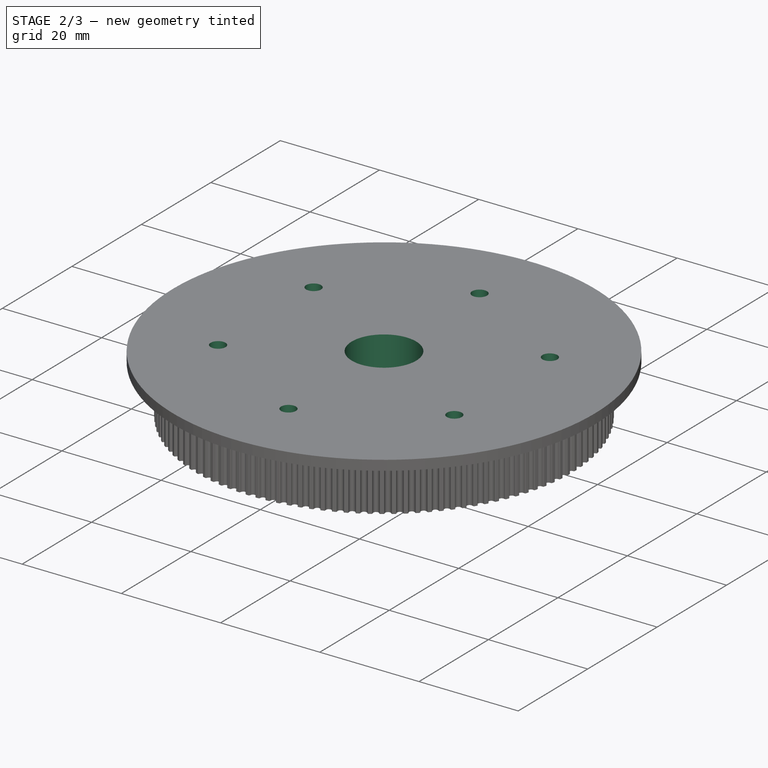
[diagram: stage 2 of 3 — iso view after this stage's code; geometry added in this stage tinted green]
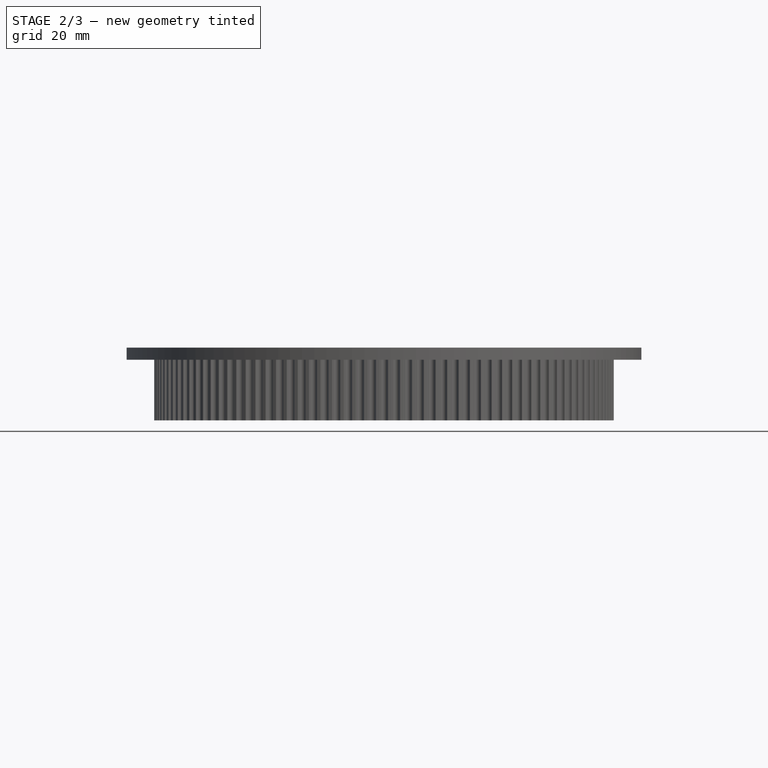
[diagram: stage 2 of 3 — front view after this stage's code; geometry added in this stage tinted green]
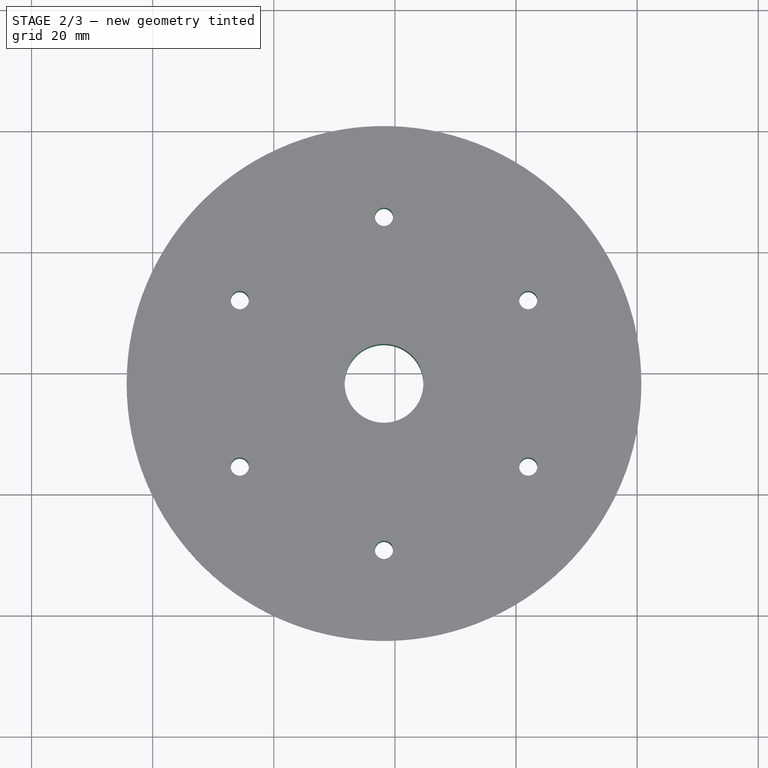
[diagram: stage 2 of 3 — top view after this stage's code; geometry added in this stage tinted green]
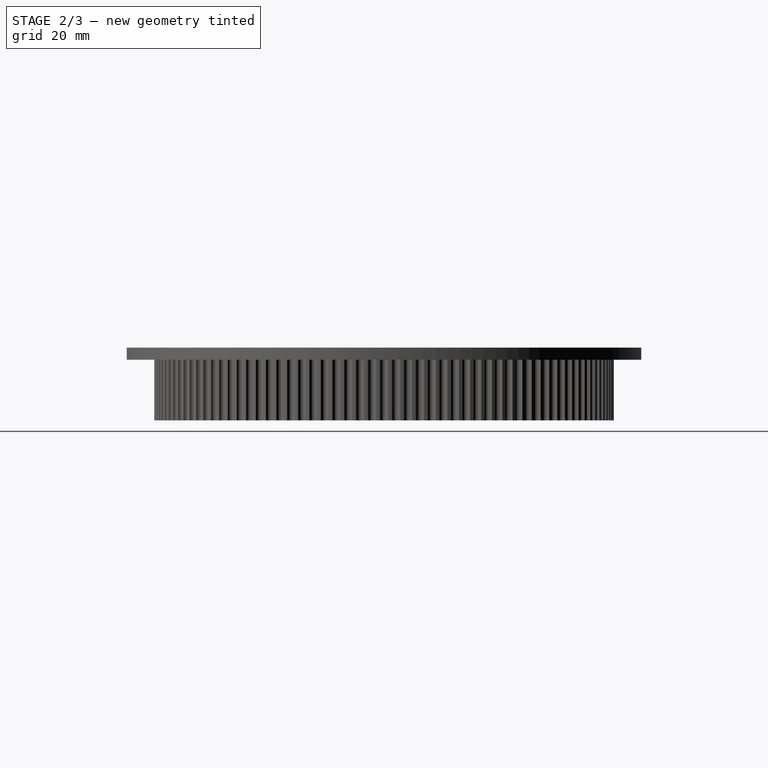
[diagram: stage 2 of 3 — right view after this stage's code; geometry added in this stage tinted green]
FEATURE [Sketcher::SketchObject] Sketch002
  ExternalGeometry = -> [Pad001]
  FullyConstrained = true
  MapMode = 5
  Placement = pos=(0,0,12) rot=(0,0,1;0rad)
  Support = -> [Pad001]
  sketch-geometry (1):
    g0: Circle CenterX=38.1972 CenterY=38.1972 CenterZ=0 NormalX=0 NormalY=0 NormalZ=1 AngleXU=0 Radius=6.5
  constraints (2):
    c: Diameter(g0) = 13
    c: Coincident(g0,g-3)
FEATURE [PartDesign::Pocket] Pocket
  BaseFeature = -> Pad001
  Direction = (0,0,-1)
  Length = 20
  Length2 = 5
  Profile = -> Sketch002
  ReferenceAxis = -> Sketch002 [N_Axis]
  Type = 0
FEATURE [Sketcher::SketchObject] Sketch003
  ExternalGeometry = -> [Pocket]
  FullyConstrained = true
  MapMode = 5
  Placement = pos=(0,0,12) rot=(0,0,1;0rad)
  Support = -> [Pocket]
  sketch-geometry (2):
    g0: Circle CenterX=38.1972 CenterY=10.6972 CenterZ=0 NormalX=0 NormalY=0 NormalZ=1 AngleXU=0 Radius=1.5
    g1: LineSegment StartX=38.1972 StartY=10.6972 StartZ=0 EndX=38.1972 EndY=38.1972 EndZ=0
  constraints (5):
    c: Diameter(g0) = 3
    c: Coincident(g1,g0)
    c: Coincident(g1,g-3)
    c: Vertical(g1)
    c: Distance(g1) = 27.5
FEATURE [PartDesign::Pocket] Pocket001
  BaseFeature = -> Pocket
  Direction = (0,0,-1)
  Length = 20
  Length2 = 5
  Profile = -> Sketch003
  ReferenceAxis = -> Sketch003 [N_Axis]
  Type = 0
FEATURE [PartDesign::PolarPattern] PolarPattern
  Angle = 360
  Axis = -> Pocket001 [Edge845]
  BaseFeature = -> Pocket001
  Occurrences = 6
  Originals = -> [Pocket001]
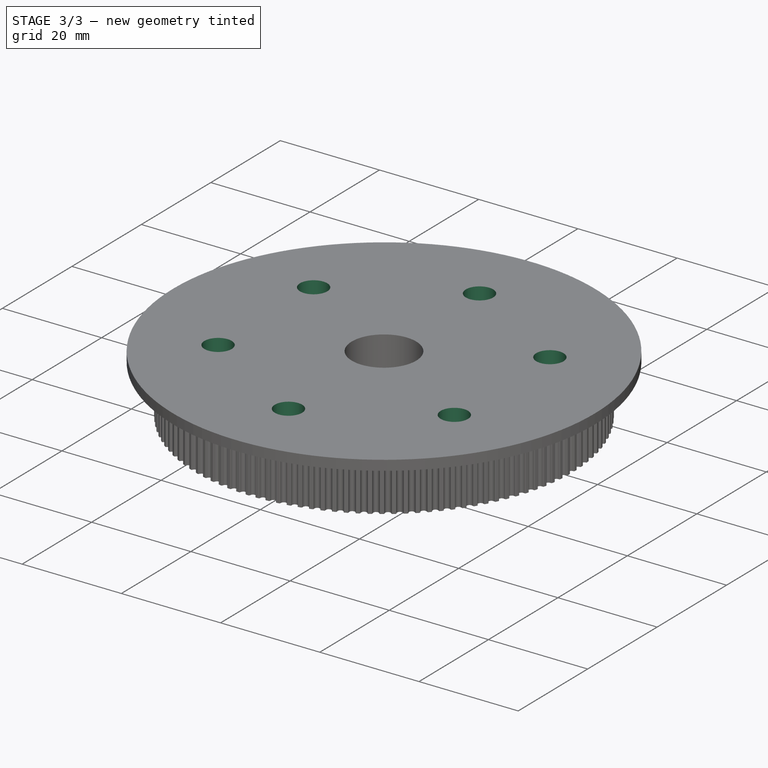
[diagram: stage 3 of 3 — iso view after this stage's code; geometry added in this stage tinted green]
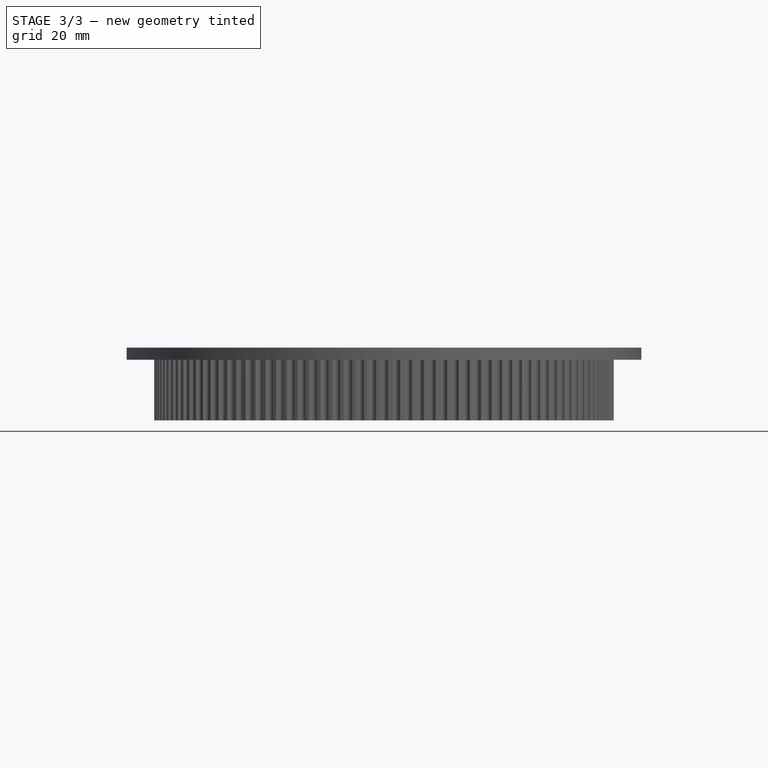
[diagram: stage 3 of 3 — front view after this stage's code; geometry added in this stage tinted green]
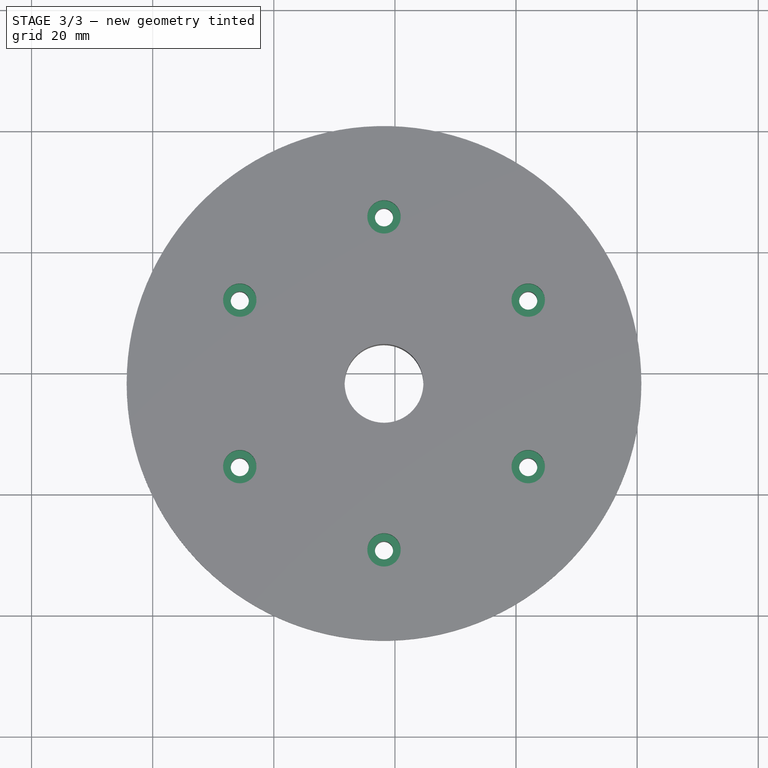
[diagram: stage 3 of 3 — top view after this stage's code; geometry added in this stage tinted green]
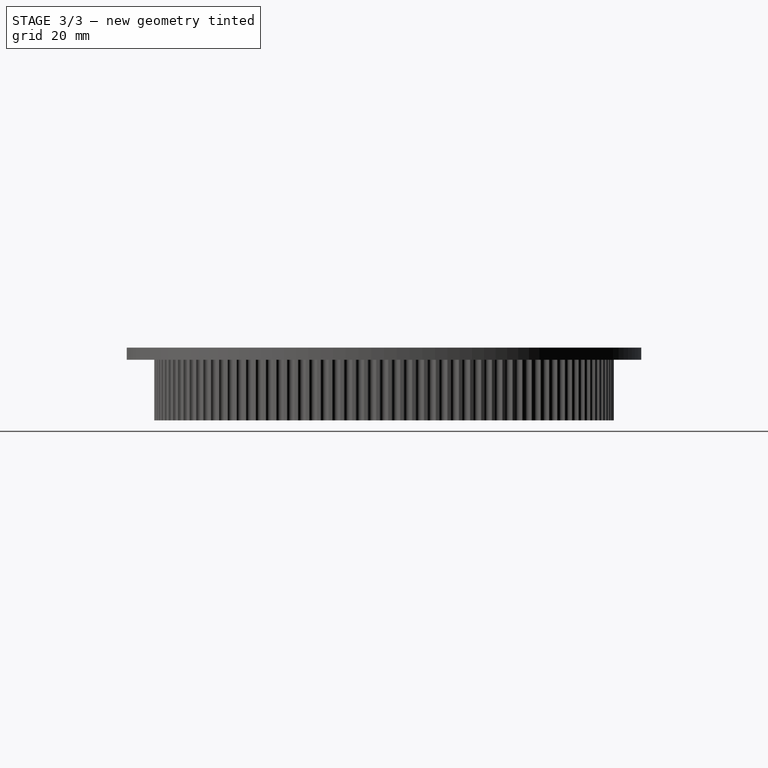
[diagram: stage 3 of 3 — right view after this stage's code; geometry added in this stage tinted green]
FEATURE [Sketcher::SketchObject] Sketch004
  ExternalGeometry = -> [PolarPattern]
  FullyConstrained = true
  MapMode = 5
  Placement = pos=(0,0,12) rot=(0,0,1;0rad)
  Support = -> [PolarPattern]
  sketch-geometry (1):
    g0: Circle CenterX=38.1972 CenterY=10.6972 CenterZ=0 NormalX=0 NormalY=0 NormalZ=1 AngleXU=0 Radius=2.75
  constraints (2):
    c: Coincident(g0,g-3)
    c: Diameter(g0) = 5.5
FEATURE [PartDesign::Pocket] Pocket002
  BaseFeature = -> PolarPattern
  Direction = (0,0,-1)
  Length = 4
  Length2 = 5
  Profile = -> Sketch004
  ReferenceAxis = -> Sketch004 [N_Axis]
  Type = 0
FEATURE [PartDesign::PolarPattern] PolarPattern001
  Angle = 360
  Axis = -> Pocket002 [Edge849]
  BaseFeature = -> Pocket002
  Occurrences = 6
  Originals = -> [Pocket002]
FEATURE [PartDesign::Body] Body
  Group = -> [Sketch,Pad,Sketch001,Pad001,Sketch002,Pocket,Sketch003,Pocket001,PolarPattern,Sketch004,Pocket002,PolarPattern001]
  Origin = -> Origin
  Tip = -> PolarPattern001
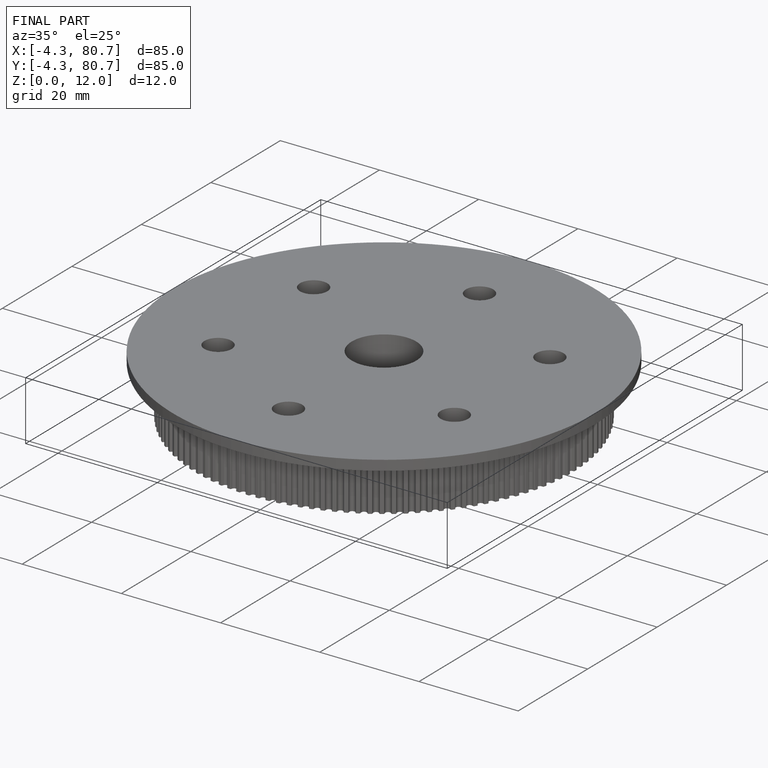
[diagram: finished part — iso view with bounding-box wireframe]
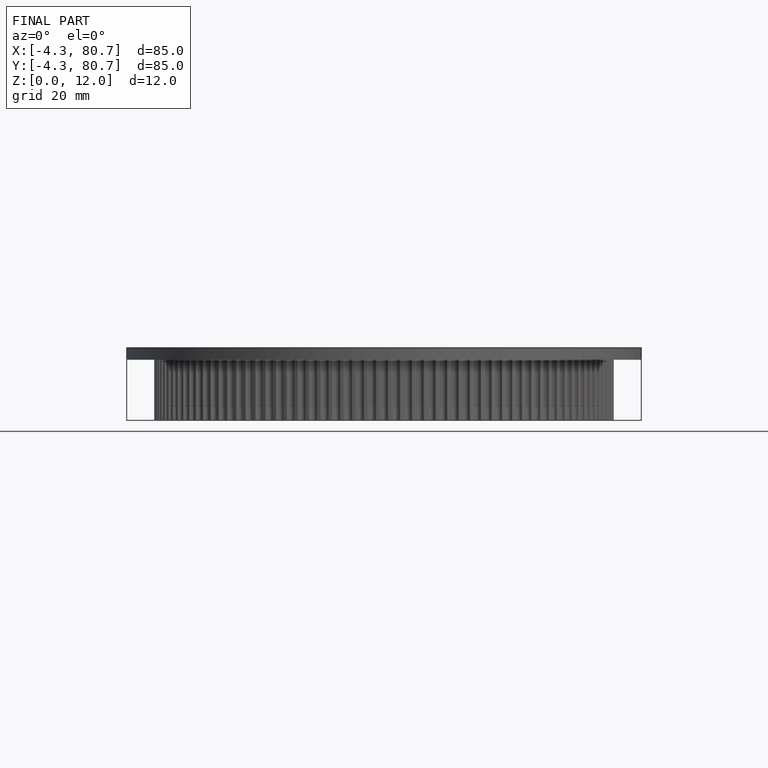
[diagram: finished part — front view with bounding-box wireframe]
